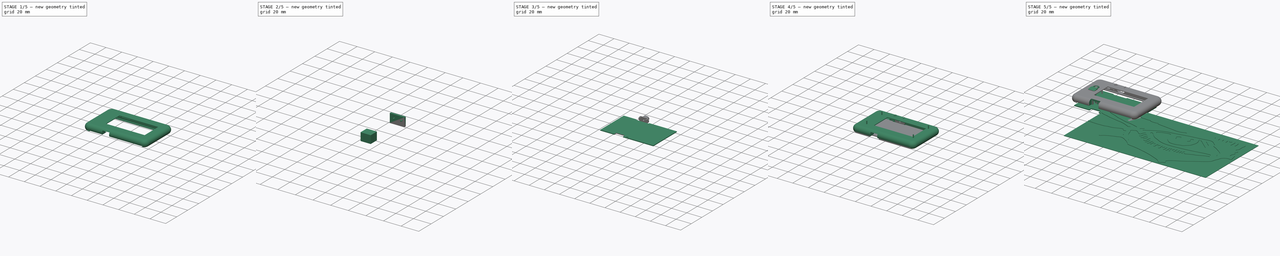
[diagram: build sequence overview — one tinted view per stage of 5, left to right]
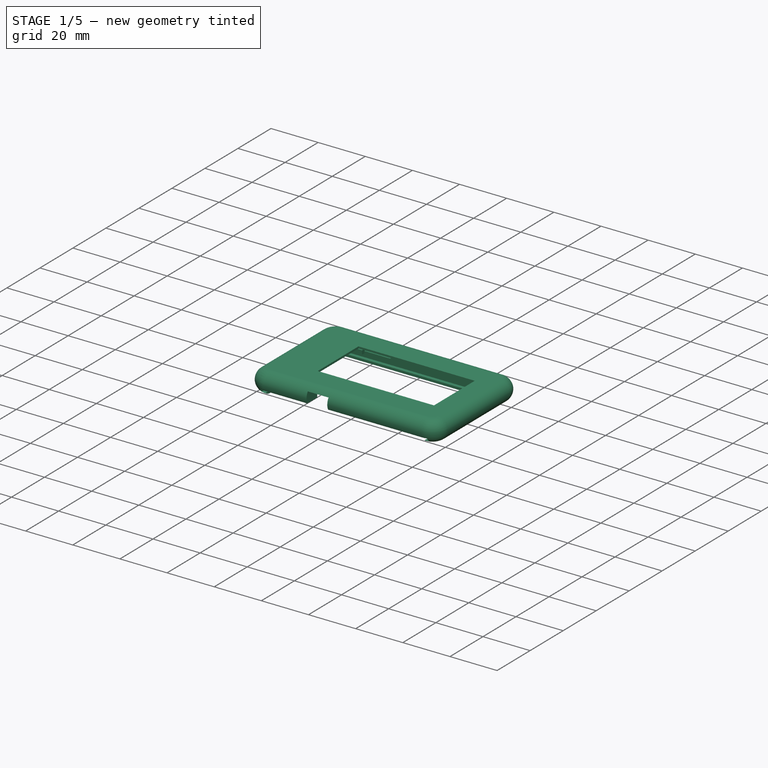
[diagram: stage 1 of 5 — iso view after this stage's code; geometry added in this stage tinted green]
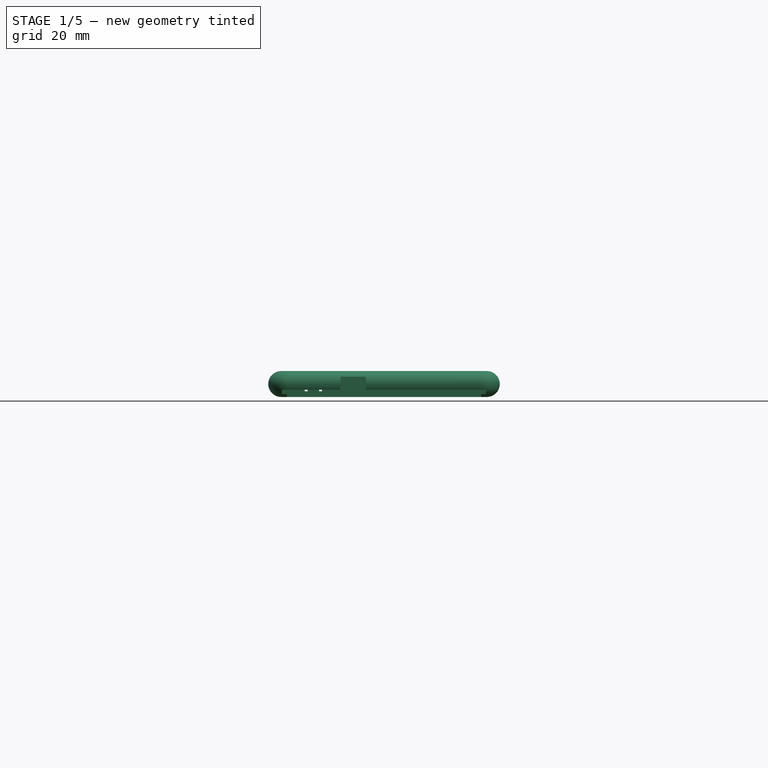
[diagram: stage 1 of 5 — front view after this stage's code; geometry added in this stage tinted green]
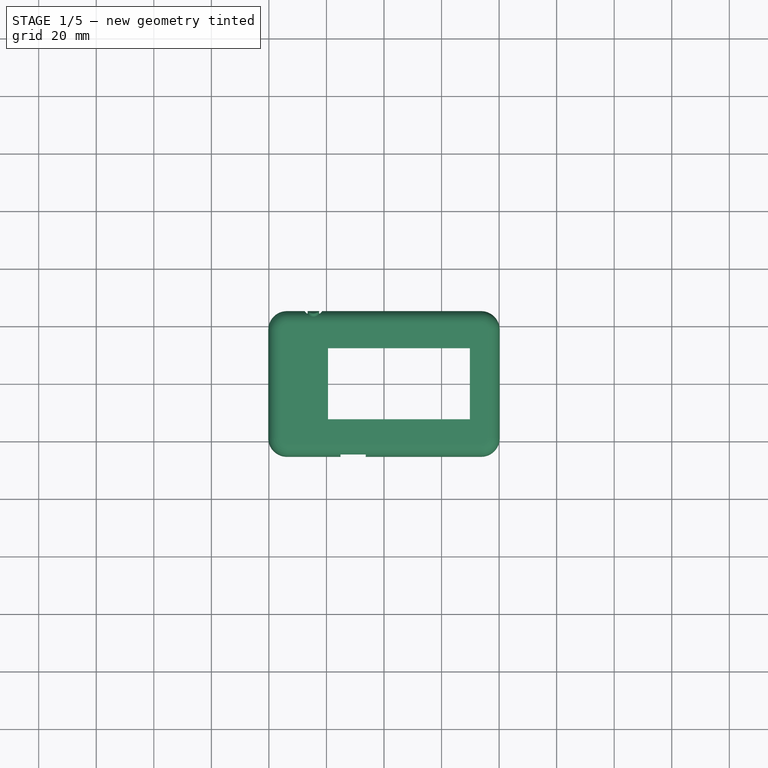
[diagram: stage 1 of 5 — top view after this stage's code; geometry added in this stage tinted green]
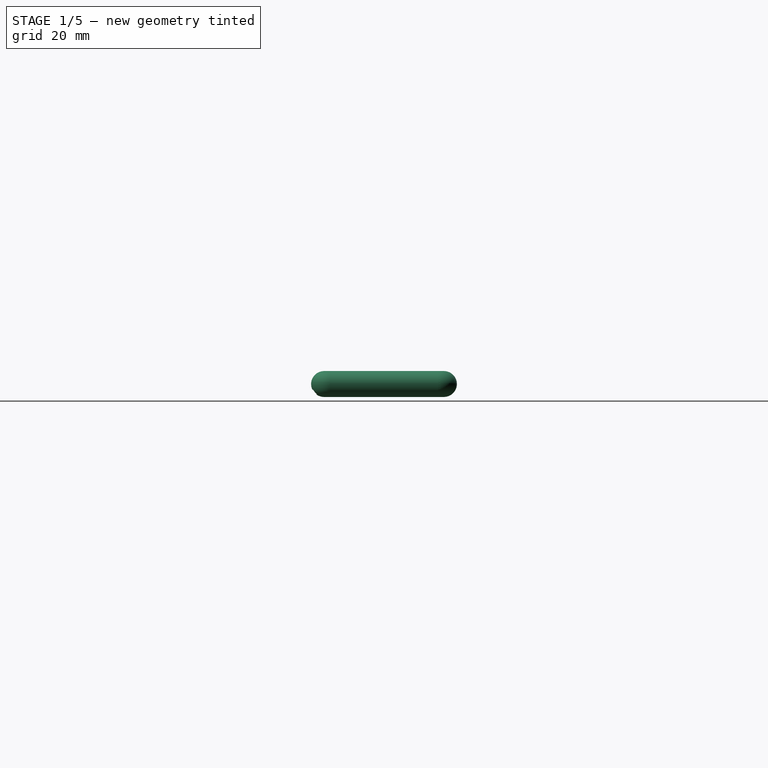
[diagram: stage 1 of 5 — right view after this stage's code; geometry added in this stage tinted green]
FCSTD DOCUMENT  (FreeCAD 0.19R22492 (Git))
Label: vpn_case
License: All rights reserved
LicenseURL: http://en.wikipedia.org/wiki/All_rights_reserved
objects: Sketcher::SketchObject×38, PartDesign::Pad×18, PartDesign::Pocket×14, PartDesign::Plane×13, PartDesign::Body×11, PartDesign::FeatureBase×4, App::DocumentObjectGroup×4, PartDesign::ShapeBinder×3, Part::Cut×3, Part::MultiFuse×3, PartDesign::Fillet×2, PartDesign::AdditivePipe×1, PartDesign::Groove×1, Part::FeaturePython×1, Part::Fillet×1
note: 149 computed .brp shape members not serialized (recipe doc carries the construction recipe); baked Part::Feature solids carry a one-line shape summary decoded from their .brp

FEATURE [Sketcher::SketchObject] Sketch
  MapMode = 5
  Support = -> [XY_Plane]
  sketch-geometry (8):
    g0: LineSegment StartX=-33.725 StartY=18.825 StartZ=0 EndX=33.725 EndY=18.825 EndZ=0
    g1: LineSegment StartX=33.725 StartY=18.825 StartZ=0 EndX=33.725 EndY=-18.825 EndZ=0
    g2: LineSegment StartX=33.725 StartY=-18.825 StartZ=0 EndX=-33.725 EndY=-18.825 EndZ=0
    g3: LineSegment StartX=-33.725 StartY=-18.825 StartZ=0 EndX=-33.725 EndY=18.825 EndZ=0
    g4: GeomPoint X=-33.725 Y=0 Z=0
    g5: LineSegment [constr] StartX=-33.725 StartY=0 StartZ=0 EndX=33.725 EndY=0 EndZ=0
    g6: GeomPoint X=0 Y=18.825 Z=0
    g7: LineSegment [constr] StartX=0 StartY=18.825 StartZ=0 EndX=0 EndY=-18.825 EndZ=0
  constraints (20):
    c: Coincident(g0,g1)
    c: Coincident(g1,g2)
    c: Coincident(g2,g3)
    c: Coincident(g3,g0)
    c: Horizontal(g0)
    c: Horizontal(g2)
    c: Vertical(g1)
    c: Vertical(g3)
    c: DistanceY(g3,g3) = 37.65
    c: DistanceX(g0,g0) = 67.45
    c: Coincident(g5,g4)
    c: PointOnObject(g5,g1)
    c: Horizontal(g5)
    c: Symmetric(g0,g2,g4)
    c: Coincident(g7,g6)
    c: PointOnObject(g7,g2)
    c: Vertical(g7)
    c: Symmetric(g0,g0,g6)
    c: PointOnObject(g-1,g7)
    c: PointOnObject(g-1,g5)
FEATURE [PartDesign::Pad] Pad
  Direction = (1,1,1)
  Length = 9
  Length2 = 100
  Profile = -> Sketch
  Type = 0
FEATURE [Sketcher::SketchObject] Sketch001
  MapMode = 5
  Placement = pos=(0,0,9) rot=(0,0,1;0rad)
  Support = -> [Pad]
  sketch-geometry (11):
    g0: LineSegment StartX=-19.45 StartY=12.35 StartZ=0 EndX=29.85 EndY=12.35 EndZ=0
    g1: LineSegment StartX=29.85 StartY=12.35 StartZ=0 EndX=29.85 EndY=-12.35 EndZ=0
    g2: LineSegment StartX=29.85 StartY=-12.35 StartZ=0 EndX=-19.45 EndY=-12.35 EndZ=0
    g3: LineSegment StartX=-19.45 StartY=-12.35 StartZ=0 EndX=-19.45 EndY=12.35 EndZ=0
    g4: LineSegment [constr] StartX=-33.25 StartY=18.33 StartZ=0 EndX=33.25 EndY=18.33 EndZ=0
    g5: LineSegment [constr] StartX=33.25 StartY=18.33 StartZ=0 EndX=33.25 EndY=-18.33 EndZ=0
    g6: LineSegment [constr] StartX=33.25 StartY=-18.33 StartZ=0 EndX=-33.25 EndY=-18.33 EndZ=0
    g7: LineSegment [constr] StartX=-33.25 StartY=-18.33 StartZ=0 EndX=-33.25 EndY=18.33 EndZ=0
    g8: LineSegment [constr] StartX=0 StartY=0 StartZ=0 EndX=-33.25 EndY=0 EndZ=0
    g9: LineSegment [constr] StartX=0 StartY=0 StartZ=0 EndX=0 EndY=-18.33 EndZ=0
    g10: GeomPoint X=-19.45 Y=0 Z=0
  constraints (29):
    c: Coincident(g0,g1)
    c: Coincident(g1,g2)
    c: Coincident(g2,g3)
    c: Coincident(g3,g0)
    c: Horizontal(g0)
    c: Horizontal(g2)
    c: Vertical(g1)
    c: Vertical(g3)
    c: DistanceX(g0,g0) = 49.3
    c: DistanceY(g3,g3) = 24.7
    c: Coincident(g4,g5)
    c: Coincident(g5,g6)
    c: Coincident(g6,g7)
    c: Coincident(g7,g4)
    c: Horizontal(g4)
    c: Horizontal(g6)
    c: Vertical(g5)
    c: Vertical(g7)
    c: DistanceX(g4,g4) = 66.5
    c: DistanceY(g7,g7) = 36.66
    c: Coincident(g8,g-1)
    c: Horizontal(g8)
    c: Symmetric(g4,g6,g8)
    c: Coincident(g9,g-1)
    c: Vertical(g9)
    c: Symmetric(g5,g6,g9)
    c: DistanceX(g0,g4) = 3.4
    c: PointOnObject(g10,g8)
    c: Symmetric(g0,g2,g10)
FEATURE [PartDesign::Pocket] Pocket
  BaseFeature = -> Pad
  Length = 2
  Length2 = 100
  Profile = -> Sketch001
  Type = 0
FEATURE [Sketcher::SketchObject] Sketch002
  ExternalGeometry = -> [Pocket]
  MapMode = 5
  Placement = pos=(-33.725,0,0) rot=(0.57735,-0.57735,-0.57735;2.0944rad)
  Support = -> [Pocket]
  sketch-geometry (5):
    g0: LineSegment StartX=18.825 StartY=9 StartZ=0 EndX=20.825 EndY=9 EndZ=0
    g1: LineSegment [constr] StartX=20.825 StartY=9 StartZ=0 EndX=20.825 EndY=0 EndZ=0
    g2: LineSegment StartX=18.825 StartY=0 StartZ=0 EndX=20.825 EndY=0 EndZ=0
    g3: ArcOfCircle CenterX=20.825 CenterY=4.5 CenterZ=0 NormalX=0 NormalY=0 NormalZ=1 AngleXU=0 Radius=4.5 StartAngle=4.71239 EndAngle=7.85398
    g4: LineSegment StartX=18.825 StartY=9 StartZ=0 EndX=18.825 EndY=0 EndZ=0
  constraints (13):
    c: Coincident(g0,g-3)
    c: Horizontal(g0)
    c: Coincident(g1,g0)
    c: PointOnObject(g1,g-1)
    c: Vertical(g1)
    c: Coincident(g2,g-3)
    c: Coincident(g2,g1)
    c: Coincident(g3,g0)
    c: Coincident(g3,g2)
    c: PointOnObject(g3,g1)
    c: DistanceX(g0,g0) = 2
    c: Coincident(g4,g0)
    c: Coincident(g4,g2)
FEATURE [PartDesign::AdditivePipe] AdditivePipe
  AuxilleryCurvelinear = true
  AuxillerySpineTangent = false
  BaseFeature = -> Pocket
  Binormal = (0,0,0)
  Mode = 0
  Profile = -> Sketch002
  Spine = -> Pocket [Edge12,Edge10,Edge4,Edge7]
  SpineTangent = false
  Transformation = 0
  Transition = 2
FEATURE [PartDesign::Plane] DatumPlane003
  AttachmentOffset = pos=(0,0,30) rot=(0,0,1;0rad)
  Length = 93.1346
  MapMode = 5
  Placement = pos=(0,-30,-6.7e-15) rot=(1,0,0;1.5708rad)
  ResizeMode = 0
  Support = -> [XZ_Plane]
  Width = 62.6846
FEATURE [Sketcher::SketchObject] Sketch007
  MapMode = 5
  Placement = pos=(0,-30,-6.7e-15) rot=(1,0,0;1.5708rad)
  Support = -> [DatumPlane003]
  sketch-geometry (13):
    g0: LineSegment [constr] StartX=0 StartY=0 StartZ=0 EndX=-42.1073 EndY=0 EndZ=0
    g1: LineSegment StartX=-35.5 StartY=2.5 StartZ=0 EndX=35.5 EndY=2.5 EndZ=0
    g2: LineSegment StartX=35.5 StartY=2.5 StartZ=0 EndX=35.5 EndY=1 EndZ=0
    g3: LineSegment [constr] StartX=35.5 StartY=1 StartZ=0 EndX=-35.5 EndY=1 EndZ=0
    g4: LineSegment StartX=-35.5 StartY=1 StartZ=0 EndX=-35.5 EndY=2.5 EndZ=0
    g5: LineSegment [constr] StartX=0 StartY=0 StartZ=0 EndX=0 EndY=2.5 EndZ=0
    g6: LineSegment [constr] StartX=-33.75 StartY=1 StartZ=0 EndX=33.75 EndY=1 EndZ=0
    g7: LineSegment StartX=33.75 StartY=1 StartZ=0 EndX=33.75 EndY=0 EndZ=0
    g8: LineSegment StartX=33.75 StartY=0 StartZ=0 EndX=-33.75 EndY=0 EndZ=0
    g9: LineSegment StartX=-33.75 StartY=0 StartZ=0 EndX=-33.75 EndY=1 EndZ=0
    g10: GeomPoint X=0 Y=1 Z=0
    g11: LineSegment StartX=-35.5 StartY=1 StartZ=0 EndX=-33.75 EndY=1 EndZ=0
    g12: LineSegment StartX=33.75 StartY=1 StartZ=0 EndX=35.5 EndY=1 EndZ=0
  constraints (33):
    c: Coincident(g0,g-1)
    c: PointOnObject(g0,g-1)
    c: Coincident(g1,g2)
    c: Coincident(g2,g3)
    c: Coincident(g3,g4)
    c: Coincident(g4,g1)
    c: Horizontal(g1)
    c: Horizontal(g3)
    c: Vertical(g2)
    c: Vertical(g4)
    c: Coincident(g5,g-1)
    c: Vertical(g5)
    c: Symmetric(g1,g1,g5)
    c: DistanceX(g1,g1) = 71
    c: Coincident(g6,g7)
    c: Coincident(g7,g8)
    c: Coincident(g8,g9)
    c: Coincident(g9,g6)
    c: Horizontal(g6)
    c: Horizontal(g8)
    c: Vertical(g7)
    c: Vertical(g9)
    c: PointOnObject(g6,g3)
    c: PointOnObject(g10,g5)
    c: Symmetric(g6,g6,g10)
    c: DistanceX(g8,g8) = 67.5
    c: Coincident(g11,g4)
    c: Coincident(g11,g9)
    c: Coincident(g12,g7)
    c: Coincident(g12,g2)
    c: PointOnObject(g8,g0)
    c: DistanceY(g9,g9) = 1
    c: DistanceY(g4,g4) = 1.5
FEATURE [PartDesign::Pocket] Pocket001
  BaseFeature = -> AdditivePipe
  Length = 50.3
  Length2 = 100
  Profile = -> Sketch007
  Type = 0
FEATURE [Sketcher::SketchObject] Sketch008
  ExternalGeometry = -> [Pocket001]
  MapMode = 5
  Placement = pos=(33.75,0,0) rot=(0.57735,-0.57735,-0.57735;2.0944rad)
  Support = -> [Pocket001]
  sketch-geometry (4):
    g0: LineSegment StartX=-20.3 StartY=1 StartZ=0 EndX=-18.8 EndY=1 EndZ=0
    g1: LineSegment StartX=-18.8 StartY=1 StartZ=0 EndX=-18.8 EndY=4.2e-15 EndZ=0
    g2: LineSegment StartX=-18.8 StartY=4.2e-15 StartZ=0 EndX=-20.3 EndY=4.2e-15 EndZ=0
    g3: LineSegment StartX=-20.3 StartY=4.2e-15 StartZ=0 EndX=-20.3 EndY=1 EndZ=0
  constraints (11):
    c: Coincident(g0,g1)
    c: Coincident(g1,g2)
    c: Coincident(g2,g3)
    c: Coincident(g3,g0)
    c: Horizontal(g0)
    c: Horizontal(g2)
    c: Vertical(g1)
    c: Vertical(g3)
    c: Coincident(g0,g-4)
    c: PointOnObject(g1,g-3)
    c: DistanceX(g0,g0) = 1.5
FEATURE [PartDesign::Pad] Pad003
  BaseFeature = -> Pocket001
  Direction = (1,1,1)
  Length = 10
  Length2 = 100
  Profile = -> Sketch008
  Type = 2
FEATURE [Sketcher::SketchObject] Sketch010
  MapMode = 5
  Support = -> [XY_Plane003]
  sketch-geometry (8):
    g0: LineSegment StartX=-33.725 StartY=18.825 StartZ=0 EndX=33.725 EndY=18.825 EndZ=0
    g1: LineSegment StartX=33.725 StartY=18.825 StartZ=0 EndX=33.725 EndY=-18.825 EndZ=0
    g2: LineSegment StartX=33.725 StartY=-18.825 StartZ=0 EndX=-33.725 EndY=-18.825 EndZ=0
    g3: LineSegment StartX=-33.725 StartY=-18.825 StartZ=0 EndX=-33.725 EndY=18.825 EndZ=0
    g4: GeomPoint X=-33.725 Y=0 Z=0
    g5: LineSegment [constr] StartX=-33.725 StartY=0 StartZ=0 EndX=33.725 EndY=0 EndZ=0
    g6: GeomPoint X=0 Y=18.825 Z=0
    g7: LineSegment [constr] StartX=0 StartY=18.825 StartZ=0 EndX=0 EndY=-18.825 EndZ=0
  constraints (20):
    c: Coincident(g0,g1)
    c: Coincident(g1,g2)
    c: Coincident(g2,g3)
    c: Coincident(g3,g0)
    c: Horizontal(g0)
    c: Horizontal(g2)
    c: Vertical(g1)
    c: Vertical(g3)
    c: DistanceY(g3,g3) = 37.65
    c: DistanceX(g0,g0) = 67.45
    c: Coincident(g5,g4)
    c: PointOnObject(g5,g1)
    c: Horizontal(g5)
    c: Symmetric(g0,g2,g4)
    c: Coincident(g7,g6)
    c: PointOnObject(g7,g2)
    c: Vertical(g7)
    c: Symmetric(g0,g0,g6)
    c: PointOnObject(g-1,g7)
    c: PointOnObject(g-1,g5)
FEATURE [PartDesign::Pocket] Pocket002
  BaseFeature = -> Pad003
  Length = 8.2
  Length2 = 100
  Profile = -> Sketch010
  Reversed = true
  Type = 0
FEATURE [PartDesign::Plane] DatumPlane004
  Length = 93.2168
  MapMode = 5
  Placement = pos=(0,0,8.2) rot=(1,0,0;3.14159rad)
  ResizeMode = 0
  Support = -> [Pocket002]
  Width = 63.4168
FEATURE [Sketcher::SketchObject] Sketch011
  ExternalGeometry = -> [Pocket002]
  MapMode = 5
  Placement = pos=(0,-5e-16,2.5) rot=(1,0,0;3.14159rad)
  Support = -> [Pocket002]
  sketch-geometry (4):
    g0: LineSegment StartX=-15.125 StartY=18.825 StartZ=0 EndX=-6.325 EndY=18.825 EndZ=0
    g1: LineSegment StartX=-6.325 StartY=18.825 StartZ=0 EndX=-6.325 EndY=28.0852 EndZ=0
    g2: LineSegment StartX=-6.325 StartY=28.0852 StartZ=0 EndX=-15.125 EndY=28.0852 EndZ=0
    g3: LineSegment StartX=-15.125 StartY=28.0852 StartZ=0 EndX=-15.125 EndY=18.825 EndZ=0
  constraints (11):
    c: Coincident(g0,g1)
    c: Coincident(g1,g2)
    c: Coincident(g2,g3)
    c: Coincident(g3,g0)
    c: Horizontal(g0)
    c: Horizontal(g2)
    c: Vertical(g1)
    c: Vertical(g3)
    c: PointOnObject(g0,g-4)
    c: DistanceX(g-4,g0) = 18.6
    c: DistanceX(g-4,g0) = 27.4
FEATURE [PartDesign::Pocket] Pocket003
  BaseFeature = -> Pocket002
  Length = 4.5
  Length2 = 100
  Profile = -> Sketch011
  Type = 0
FEATURE [PartDesign::Plane] DatumPlane005
  AttachmentOffset = pos=(0,0,-2) rot=(0,0,1;0rad)
  Length = 93.1346
  MapMode = 5
  Placement = pos=(0,-20.825,4e-16) rot=(0,0.707107,0.707107;3.14159rad)
  ResizeMode = 0
  Support = -> [Pocket003]
  Width = 62.6846
FEATURE [Sketcher::SketchObject] Sketch012
  MapMode = 5
  Placement = pos=(0,-20.825,4e-16) rot=(0,0.707107,0.707107;3.14159rad)
  Support = -> [DatumPlane005]
FEATURE [Sketcher::SketchObject] Sketch013
  ExternalGeometry = -> [Pocket003]
  MapMode = 5
  Placement = pos=(0,18.825,0) rot=(1,0,0;1.5708rad)
  Support = -> [Pocket003]
  sketch-geometry (7):
    g0: LineSegment StartX=-28.725 StartY=8.2 StartZ=0 EndX=-9.925 EndY=8.2 EndZ=0
    g1: LineSegment StartX=-9.925 StartY=8.2 StartZ=0 EndX=-9.925 EndY=5.2 EndZ=0
    g2: LineSegment StartX=-10.925 StartY=4.2 StartZ=0 EndX=-27.725 EndY=4.2 EndZ=0
    g3: LineSegment StartX=-28.725 StartY=5.2 StartZ=0 EndX=-28.725 EndY=8.2 EndZ=0
    g4: GeomPoint X=-33.725 Y=8.2 Z=0
    g5: ArcOfCircle CenterX=-27.725 CenterY=5.2 CenterZ=0 NormalX=0 NormalY=0 NormalZ=1 AngleXU=0 Radius=1 StartAngle=3.14159 EndAngle=4.71239
    g6: ArcOfCircle CenterX=-10.925 CenterY=5.2 CenterZ=0 NormalX=0 NormalY=0 NormalZ=1 AngleXU=0 Radius=1 StartAngle=4.71239 EndAngle=6.28319
  constraints (18):
    c: Coincident(g0,g1)
    c: Coincident(g3,g0)
    c: Horizontal(g0)
    c: Horizontal(g2)
    c: Vertical(g1)
    c: Vertical(g3)
    c: PointOnObject(g0,g-4)
    c: PointOnObject(g4,g-5)
    c: PointOnObject(g4,g-4)
    c: DistanceX(g4,g0) = 5
    c: Tangent(g3,g5) = 1.5708
    c: Tangent(g2,g5) = 1.5708
    c: Radius(g5) = 1
    c: Tangent(g1,g6) = 1.5708
    c: Tangent(g2,g6) = 1.5708
    c: Radius(g6) = 1
    c: DistanceX(g0,g0) = 18.8
    c: DistanceY(g2,g0) = 4
FEATURE [PartDesign::Pocket] Pocket004
  BaseFeature = -> Pocket003
  Length = 1.7
  Length2 = 100
  Profile = -> Sketch013
  Type = 0
FEATURE [Sketcher::SketchObject] Sketch014
  ExternalGeometry = -> [Pocket004]
  MapMode = 5
  Placement = pos=(0,18.825,0) rot=(1,0,0;1.5708rad)
  Support = -> [Pocket004]
  sketch-geometry (13):
    g0: LineSegment [constr] StartX=-27.5188 StartY=5.23274 StartZ=0 EndX=-26.5188 EndY=5.23274 EndZ=0
    g1: LineSegment StartX=-26.5188 StartY=5.23274 StartZ=0 EndX=-26.5188 EndY=3.5 EndZ=0
    g2: LineSegment StartX=-26.5188 StartY=3.5 StartZ=0 EndX=-27.5188 EndY=3.5 EndZ=0
    g3: LineSegment StartX=-27.5188 StartY=3.5 StartZ=0 EndX=-27.5188 EndY=5.23274 EndZ=0
    g4: LineSegment [constr] StartX=-22.5312 StartY=5.17938 StartZ=0 EndX=-21.5312 EndY=5.17938 EndZ=0
    g5: LineSegment StartX=-21.5312 StartY=5.17938 StartZ=0 EndX=-21.5312 EndY=3.5 EndZ=0
    g6: LineSegment StartX=-21.5312 StartY=3.5 StartZ=0 EndX=-22.5312 EndY=3.5 EndZ=0
    g7: LineSegment StartX=-22.5312 StartY=3.5 StartZ=0 EndX=-22.5312 EndY=5.17938 EndZ=0
    g8: LineSegment [constr] StartX=-26.5188 StartY=5.23274 StartZ=0 EndX=-22.5312 EndY=5.17938 EndZ=0
    g9: LineSegment [constr] StartX=-26.5188 StartY=3.5 StartZ=0 EndX=-22.5312 EndY=3.5 EndZ=0
    g10: ArcOfCircle CenterX=-24.525 CenterY=5.20606 CenterZ=0 NormalX=0 NormalY=0 NormalZ=1 AngleXU=0 Radius=2.99394 StartAngle=6.27427 EndAngle=9.41587
    g11: ArcOfCircle CenterX=-24.525 CenterY=5.20606 CenterZ=0 NormalX=0 NormalY=0 NormalZ=1 AngleXU=0 Radius=1.994 StartAngle=6.2698 EndAngle=9.4114
    g12: LineSegment [constr] StartX=-27.5188 StartY=3.5 StartZ=0 EndX=-27.5188 EndY=2.5 EndZ=0
  constraints (35):
    c: Coincident(g0,g1)
    c: Coincident(g1,g2)
    c: Coincident(g2,g3)
    c: Coincident(g3,g0)
    c: Horizontal(g0)
    c: Horizontal(g2)
    c: Vertical(g1)
    c: Vertical(g3)
    c: Coincident(g4,g5)
    c: Coincident(g5,g6)
    c: Coincident(g6,g7)
    c: Coincident(g7,g4)
    c: Horizontal(g4)
    c: Horizontal(g6)
    c: Vertical(g5)
    c: Vertical(g7)
    c: Coincident(g8,g0)
    c: Coincident(g8,g4)
    c: Coincident(g9,g1)
    c: Coincident(g9,g6)
    c: Horizontal(g9)
    c: Equal(g2,g6)
    c: Coincident(g10,g0)
    c: Coincident(g10,g4)
    c: Coincident(g11,g0)
    c: Coincident(g11,g4)
    c: Coincident(g11,g10)
    c: DistanceX(g2,g2) = 1
    c: Tangent(g10,g-4)
    c: Coincident(g12,g2)
    c: PointOnObject(g12,g-5)
    c: Vertical(g12)
    c: DistanceY(g12,g12) = 1
    c: DistanceX(g-3,g10) = 9.2
    c: Radius(g11) = 1.994
FEATURE [PartDesign::Pocket] Pocket005
  BaseFeature = -> Pocket004
  Length = 5
  Length2 = 100
  Profile = -> Sketch014
  Type = 1
FEATURE [PartDesign::Plane] DatumPlane006
  AttachmentOffset = pos=(0,0,-28) rot=(0,0,1;0rad)
  Length = 93.1346
  MapMode = 5
  Placement = pos=(0,28,6.2e-15) rot=(1,0,0;1.5708rad)
  ResizeMode = 0
  Support = -> [XZ_Plane]
  Width = 62.6846
FEATURE [Sketcher::SketchObject] Sketch016
  ExternalGeometry = -> [Pocket005]
  MapMode = 5
  Placement = pos=(0,28,6.2e-15) rot=(1,0,0;1.5708rad)
  Support = -> [DatumPlane006]
  sketch-geometry (8):
    g0: LineSegment StartX=-21.5312 StartY=3.5 StartZ=0 EndX=-22.5312 EndY=3.5 EndZ=0
    g1: LineSegment StartX=-22.5312 StartY=3.5 StartZ=0 EndX=-22.5312 EndY=2 EndZ=0
    g2: LineSegment StartX=-22.5312 StartY=2 StartZ=0 EndX=-21.5312 EndY=2 EndZ=0
    g3: LineSegment StartX=-21.5312 StartY=2 StartZ=0 EndX=-21.5312 EndY=3.5 EndZ=0
    g4: LineSegment StartX=-27.5188 StartY=3.5 StartZ=0 EndX=-26.5188 EndY=3.5 EndZ=0
    g5: LineSegment StartX=-26.5188 StartY=3.5 StartZ=0 EndX=-26.5188 EndY=2 EndZ=0
    g6: LineSegment StartX=-26.5188 StartY=2 StartZ=0 EndX=-27.5188 EndY=2 EndZ=0
    g7: LineSegment StartX=-27.5188 StartY=2 StartZ=0 EndX=-27.5188 EndY=3.5 EndZ=0
  constraints (20):
    c: Coincident(g0,g1)
    c: Coincident(g1,g2)
    c: Coincident(g2,g3)
    c: Coincident(g3,g0)
    c: Horizontal(g2)
    c: Vertical(g1)
    c: Vertical(g3)
    c: Coincident(g0,g-3)
    c: Coincident(g0,g-3)
    c: DistanceY(g1,g1) = 1.5
    c: Coincident(g4,g5)
    c: Coincident(g5,g6)
    c: Coincident(g6,g7)
    c: Coincident(g7,g4)
    c: Horizontal(g6)
    c: Vertical(g5)
    c: Vertical(g7)
    c: Coincident(g4,g-4)
    c: Coincident(g4,g-4)
    c: DistanceY(g7,g7) = 1.5
FEATURE [PartDesign::Pocket] Pocket006
  BaseFeature = -> Pocket005
  Length = 11
  Length2 = 100
  Profile = -> Sketch016
  Reversed = true
  Type = 0
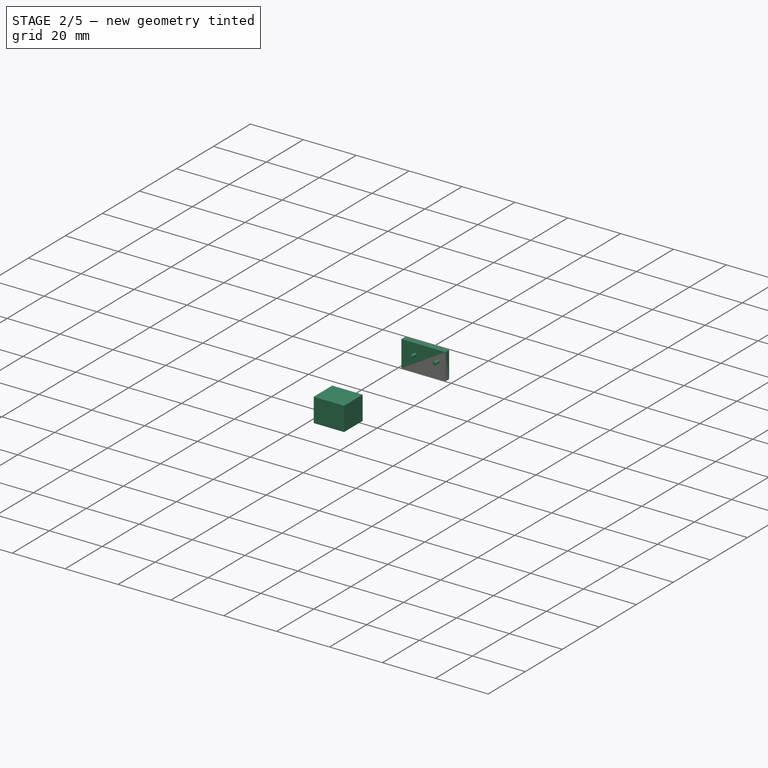
[diagram: stage 2 of 5 — iso view after this stage's code; geometry added in this stage tinted green]
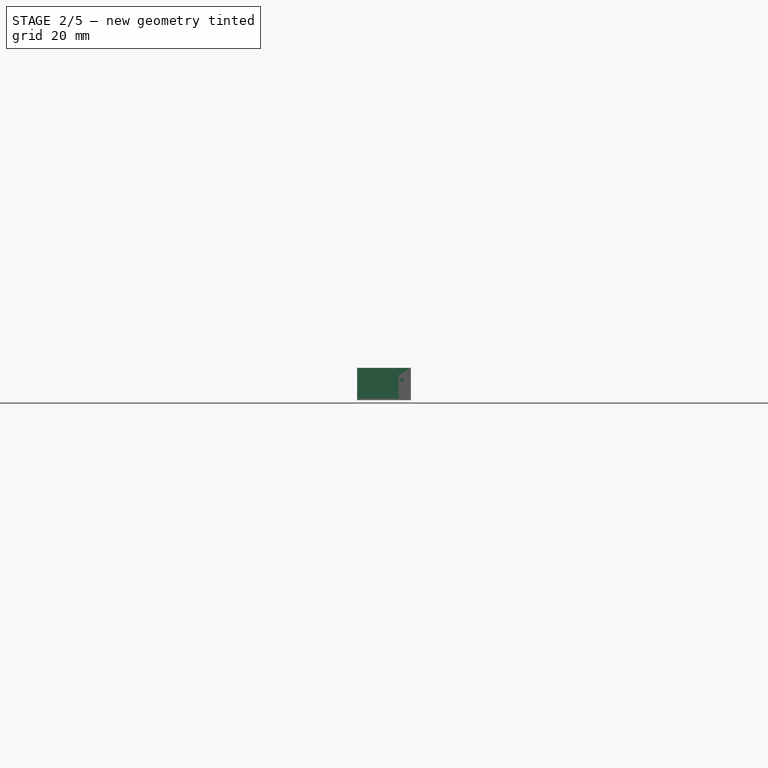
[diagram: stage 2 of 5 — front view after this stage's code; geometry added in this stage tinted green]
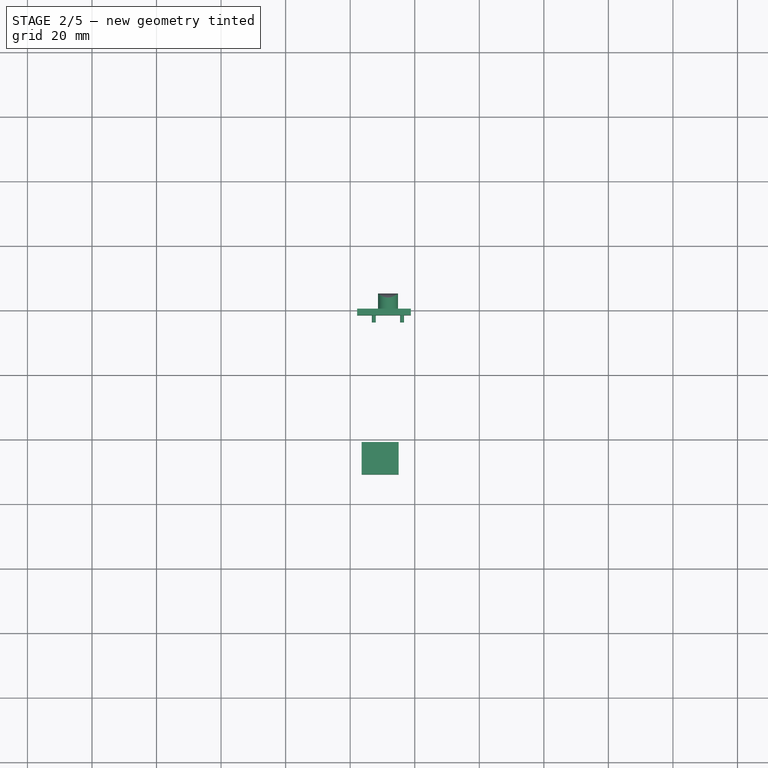
[diagram: stage 2 of 5 — top view after this stage's code; geometry added in this stage tinted green]
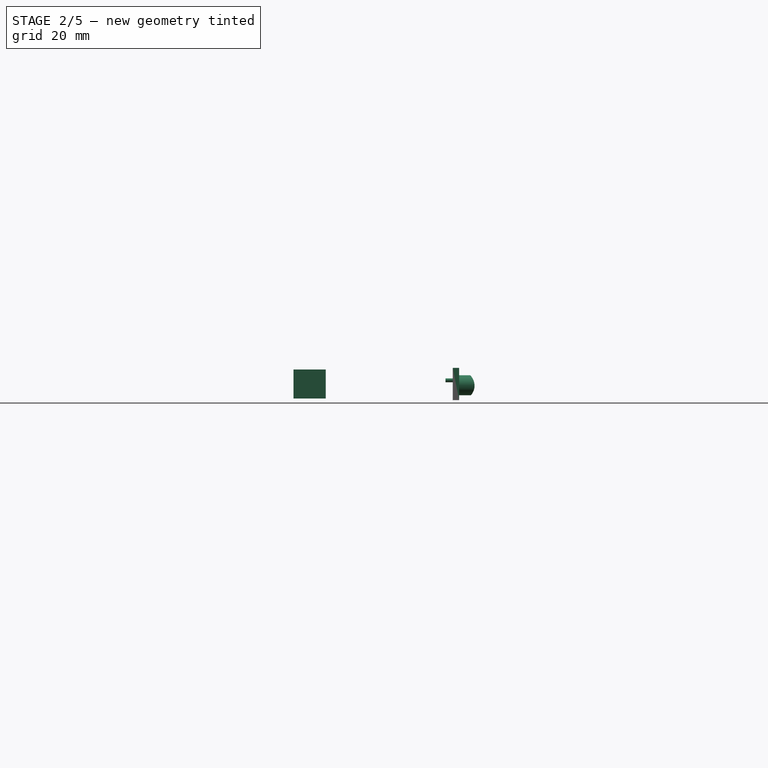
[diagram: stage 2 of 5 — right view after this stage's code; geometry added in this stage tinted green]
FEATURE [Sketcher::SketchObject] Sketch017
  ExternalGeometry = -> [Pocket006]
  MapMode = 5
  Placement = pos=(-22.5312,0,0) rot=(0.57735,0.57735,0.57735;2.0944rad)
  Support = -> [Pocket006]
  sketch-geometry (5):
    g0: LineSegment StartX=18.825 StartY=4.2 StartZ=0 EndX=22.825 EndY=4.2 EndZ=0
    g1: LineSegment [constr] StartX=22.825 StartY=4.2 StartZ=0 EndX=22.825 EndY=2 EndZ=0
    g2: LineSegment StartX=22.825 StartY=2 StartZ=0 EndX=18.825 EndY=2 EndZ=0
    g3: LineSegment StartX=18.825 StartY=2 StartZ=0 EndX=18.825 EndY=4.2 EndZ=0
    g4: ArcOfCircle CenterX=22.825 CenterY=3.1 CenterZ=0 NormalX=0 NormalY=0 NormalZ=1 AngleXU=0 Radius=1.1 StartAngle=4.71239 EndAngle=7.85398
  constraints (15):
    c: Coincident(g0,g1)
    c: Coincident(g1,g2)
    c: Coincident(g2,g3)
    c: Coincident(g3,g0)
    c: Horizontal(g0)
    c: Horizontal(g2)
    c: Vertical(g1)
    c: Vertical(g3)
    c: PointOnObject(g-4,g3)
    c: PointOnObject(g-3,g2)
    c: Coincident(g4,g0)
    c: Coincident(g4,g1)
    c: PointOnObject(g4,g1)
    c: DistanceY(g3,g3) = 2.2
    c: DistanceX(g0,g0) = 4
FEATURE [PartDesign::Pocket] Pocket007
  BaseFeature = -> Pocket006
  Length = 4
  Length2 = 100
  Profile = -> Sketch017
  Type = 2
FEATURE [PartDesign::ShapeBinder] ShapeBinder
  Support = -> [Sketch018]
  TraceSupport = false
FEATURE [PartDesign::Plane] DatumPlane007
  AttachmentOffset = pos=(0,0,-18.8) rot=(0,0,1;0rad)
  Length = 60
  MapMode = 5
  Placement = pos=(0,18.8,4.2e-15) rot=(1,0,0;1.5708rad)
  ResizeMode = 0
  Support = -> [XZ_Plane003]
  Width = 60
FEATURE [Sketcher::SketchObject] Sketch025
  ExternalGeometry = -> [ShapeBinder]
  MapMode = 5
  Placement = pos=(0,18.8,4.2e-15) rot=(1,0,0;1.5708rad)
  Support = -> [DatumPlane007]
  sketch-geometry (1):
    g0: Circle CenterX=-8.275 CenterY=4.6 CenterZ=0 NormalX=0 NormalY=0 NormalZ=1 AngleXU=0 Radius=3.1
  constraints (2):
    c: Coincident(g0,g-5)
    c: Tangent(g0,g-3)
FEATURE [PartDesign::Pad] Pad007
  Direction = (1,1,1)
  Length = 10
  Length2 = 100
  Placement = pos=(0,18.8,-4.2e-15) rot=(1,0,0;1.5708rad)
  Profile = -> Sketch025
  Reversed = true
  Type = 0
FEATURE [Sketcher::SketchObject] Sketch026
  ExternalGeometry = -> [Pad007]
  MapMode = 5
  Placement = pos=(0,18.8,-4.2e-15) rot=(1,0,0;1.5708rad)
  Support = -> [Pad007]
  sketch-geometry (7):
    g0: LineSegment [constr] StartX=-8.275 StartY=4.6 StartZ=0 EndX=-14.775 EndY=4.6 EndZ=0
    g1: ArcOfCircle CenterX=-11.675 CenterY=4.6 CenterZ=0 NormalX=0 NormalY=0 NormalZ=1 AngleXU=0 Radius=3.1 StartAngle=1.5708 EndAngle=4.71239
    g2: ArcOfCircle CenterX=-4.875 CenterY=4.6 CenterZ=0 NormalX=0 NormalY=0 NormalZ=1 AngleXU=0 Radius=3.1 StartAngle=4.71239 EndAngle=7.85398
    g3: LineSegment StartX=-11.675 StartY=1.5 StartZ=0 EndX=-4.875 EndY=1.5 EndZ=0
    g4: LineSegment StartX=-11.675 StartY=7.7 StartZ=0 EndX=-4.875 EndY=7.7 EndZ=0
    g5: GeomPoint X=-8.275 Y=7.7 Z=0
    g6: LineSegment [constr] StartX=-8.275 StartY=7.7 StartZ=0 EndX=-8.275 EndY=4.6 EndZ=0
  constraints (16):
    c: Coincident(g0,g-3)
    c: Horizontal(g0)
    c: Tangent(g1,g4)
    c: Tangent(g1,g3)
    c: Tangent(g3,g2)
    c: Tangent(g4,g2)
    c: Horizontal(g3)
    c: Equal(g1,g2)
    c: PointOnObject(g1,g0)
    c: Symmetric(g1,g2,g5)
    c: Coincident(g6,g5)
    c: Coincident(g6,g0)
    c: Vertical(g6)
    c: PointOnObject(g5,g-3)
    c: PointOnObject(g0,g1)
    c: DistanceX(g0,g0) = 6.5
FEATURE [PartDesign::Pad] Pad008
  BaseFeature = -> Pad007
  Direction = (1,1,1)
  Length = 1.2
  Length2 = 100
  Placement = pos=(0,18.8,-4.2e-15) rot=(1,0,0;1.5708rad)
  Profile = -> Sketch026
  Reversed = true
  Type = 0
FEATURE [Sketcher::SketchObject] Sketch027
  MapMode = 5
  Placement = pos=(0,0,0) rot=(0.57735,0.57735,0.57735;2.0944rad)
  Support = -> [YZ_Plane003]
  sketch-geometry (6):
    g0: ArcOfCircle CenterX=20.8 CenterY=4.5 CenterZ=0 NormalX=0 NormalY=0 NormalZ=1 AngleXU=0 Radius=4.5 StartAngle=4.71239 EndAngle=7.85398
    g1: LineSegment [constr] StartX=20.8 StartY=9 StartZ=0 EndX=20.8 EndY=4.5 EndZ=0
    g2: LineSegment [constr] StartX=20.8 StartY=0 StartZ=0 EndX=20.8 EndY=4.5 EndZ=0
    g3: LineSegment StartX=20.8 StartY=9 StartZ=0 EndX=30.3933 EndY=9 EndZ=0
    g4: LineSegment StartX=30.3933 StartY=9 StartZ=0 EndX=30.3933 EndY=0 EndZ=0
    g5: LineSegment StartX=30.3933 StartY=0 StartZ=0 EndX=20.8 EndY=0 EndZ=0
  constraints (16):
    c: Coincident(g1,g0)
    c: Coincident(g1,g0)
    c: Vertical(g1)
    c: Coincident(g2,g0)
    c: Coincident(g2,g0)
    c: Vertical(g2)
    c: DistanceX(g0) = 20.8
    c: DistanceY(g0) = 4.5
    c: DistanceY(g0,g0) = 9
    c: Coincident(g0,g3)
    c: Coincident(g3,g4)
    c: Coincident(g4,g5)
    c: Coincident(g5,g0)
    c: Horizontal(g3)
    c: Horizontal(g5)
    c: Vertical(g4)
FEATURE [PartDesign::Pocket] Pocket011
  BaseFeature = -> Pad008
  Length = 17
  Length2 = 100
  Placement = pos=(0,18.8,-4.2e-15) rot=(1,0,0;1.5708rad)
  Profile = -> Sketch027
  Type = 0
FEATURE [Sketcher::SketchObject] Sketch028
  ExternalGeometry = -> [ShapeBinder]
  MapMode = 5
  Placement = pos=(0,18.8,-4.2e-15) rot=(1,0,0;1.5708rad)
  Support = -> [Pocket011]
  sketch-geometry (1):
    g0: Circle CenterX=-8.275 CenterY=4.6 CenterZ=0 NormalX=0 NormalY=0 NormalZ=1 AngleXU=0 Radius=1.15
  constraints (2):
    c: Coincident(g0,g-3)
    c: Tangent(g0,g-3)
FEATURE [PartDesign::Pocket] Pocket012
  BaseFeature = -> Pocket011
  Length = 4
  Length2 = 100
  Placement = pos=(0,18.8,-4.2e-15) rot=(1,0,0;1.5708rad)
  Profile = -> Sketch028
  Type = 0
FEATURE [PartDesign::Plane] DatumPlane011
  AttachmentOffset = pos=(0,0,18.8) rot=(0,0,1;0rad)
  Length = 60
  MapMode = 5
  Placement = pos=(0,-18.8,4.2e-15) rot=(1,0,0;1.5708rad)
  ResizeMode = 0
  Support = -> [XZ_Plane007]
  Width = 60
FEATURE [PartDesign::Plane] DatumPlane012
  AttachmentOffset = pos=(0,0,2) rot=(0,0,1;0rad)
  Length = 60
  MapMode = 5
  Placement = pos=(0,-20.8,4.6e-15) rot=(1,0,0;1.5708rad)
  ResizeMode = 0
  Support = -> [DatumPlane011]
  Width = 60
FEATURE [Sketcher::SketchObject] Sketch035
  MapMode = 5
  Placement = pos=(0,-20.8,4.6e-15) rot=(1,0,0;1.5708rad)
  Support = -> [DatumPlane012]
  sketch-geometry (11):
    g0: LineSegment [constr] StartX=-5.60935 StartY=7 StartZ=0 EndX=1.90114 EndY=7 EndZ=0
    g1: LineSegment [constr] StartX=-5.0131 StartY=8.2 StartZ=0 EndX=-0.817735 EndY=8.2 EndZ=0
    g2: LineSegment [constr] StartX=-5.34143 StartY=6.5 StartZ=0 EndX=-2.42292 EndY=6.5 EndZ=0
    g3: LineSegment StartX=-16.475 StartY=9.5 StartZ=0 EndX=-4.975 EndY=9.5 EndZ=0
    g4: LineSegment StartX=-4.975 StartY=9.5 StartZ=0 EndX=-4.975 EndY=0.5 EndZ=0
    g5: LineSegment StartX=-4.975 StartY=0.5 StartZ=0 EndX=-16.475 EndY=0.5 EndZ=0
    g6: LineSegment StartX=-16.475 StartY=0.5 StartZ=0 EndX=-16.475 EndY=9.5 EndZ=0
    g7: LineSegment [constr] StartX=-15.125 StartY=6.80378 StartZ=0 EndX=-6.325 EndY=6.80378 EndZ=0
    g8: GeomPoint X=-10.725 Y=6.80378 Z=0
    g9: GeomPoint X=-10.725 Y=9.5 Z=0
    g10: LineSegment [constr] StartX=-10.725 StartY=9.5 StartZ=0 EndX=-10.725 EndY=6.80378 EndZ=0
  constraints (26):
    c: Horizontal(g0)
    c: DistanceY(g-1,g0) = 7
    c: Horizontal(g1)
    c: DistanceY(g0,g1) = 1.2
    c: Horizontal(g2)
    c: DistanceY(g2,g0) = 0.5
    c: Coincident(g3,g4)
    c: Coincident(g4,g5)
    c: Coincident(g5,g6)
    c: Coincident(g6,g3)
    c: Horizontal(g3)
    c: Horizontal(g5)
    c: Vertical(g4)
    c: Vertical(g6)
    c: DistanceY(g2,g3) = 3
    c: DistanceY(g4,g2) = 6
    c: Horizontal(g7)
    c: DistanceX(g7) = -15.125
    c: DistanceY(g7) = 6.80378
    c: DistanceX(g7,g7) = 8.8
    c: Symmetric(g7,g7,g8)
    c: Symmetric(g3,g3,g9)
    c: Coincident(g10,g9)
    c: Coincident(g10,g8)
    c: Vertical(g10)
    c: DistanceX(g3,g3) = 11.5
FEATURE [PartDesign::Pad] Pad013
  Direction = (1,1,1)
  Length = 10
  Length2 = 100
  Placement = pos=(0,-20.8,4.6e-15) rot=(1,0,0;1.5708rad)
  Profile = -> Sketch035
  Type = 0
FEATURE [Sketcher::SketchObject] Sketch037
  MapMode = 5
  Support = -> [XY_Plane009]
  sketch-geometry (4):
    g0: LineSegment StartX=-17.85 StartY=20.5379 StartZ=0 EndX=-1.2 EndY=20.5379 EndZ=0
    g1: LineSegment StartX=-1.2 StartY=20.5379 StartZ=0 EndX=-1.2 EndY=18.5379 EndZ=0
    g2: LineSegment StartX=-1.2 StartY=18.5379 StartZ=0 EndX=-17.85 EndY=18.5379 EndZ=0
    g3: LineSegment StartX=-17.85 StartY=18.5379 StartZ=0 EndX=-17.85 EndY=20.5379 EndZ=0
  constraints (12):
    c: Coincident(g0,g1)
    c: Coincident(g1,g2)
    c: Coincident(g2,g3)
    c: Coincident(g3,g0)
    c: Horizontal(g0)
    c: Horizontal(g2)
    c: Vertical(g1)
    c: Vertical(g3)
    c: DistanceX(g0) = -17.85
    c: DistanceY(g0) = 20.5379
    c: DistanceX(g0,g0) = 16.65
    c: DistanceY(g1,g1) = 2
FEATURE [PartDesign::Pad] Pad015
  Direction = (1,1,1)
  Length = 10
  Length2 = 100
  Profile = -> Sketch037
  Type = 0
FEATURE [PartDesign::Body] Body010  label="body_placeholder"
  Group = -> [Clone004]
  Origin = -> Origin010
  Tip = -> Clone004
FEATURE [PartDesign::FeatureBase] Clone005  label="slider_clone"
  BaseFeature = -> Body003
FEATURE [PartDesign::Body] Body009  label="lid_with_support"
  Group = -> [Clone003,Sketch038,Pad016]
  Origin = -> Origin009
  Placement = pos=(0,0,-4) rot=(0,0,1;0rad)
  Tip = -> Pad016
FEATURE [Sketcher::SketchObject] Sketch039
  MapMode = 5
  Placement = pos=(0,18.8,-4.1e-15) rot=(1,0,0;1.5708rad)
  Support = -> [Clone005]
  sketch-geometry (3):
    g0: LineSegment [constr] StartX=-12.6746 StartY=6.13614 StartZ=0 EndX=-3.94336 EndY=6.13614 EndZ=0
    g1: Circle CenterX=-12.6746 CenterY=6.13614 CenterZ=0 NormalX=0 NormalY=0 NormalZ=1 AngleXU=0 Radius=0.6
    g2: Circle CenterX=-3.94336 CenterY=6.13614 CenterZ=0 NormalX=0 NormalY=0 NormalZ=1 AngleXU=0 Radius=0.6
  constraints (5):
    c: Horizontal(g0)
    c: Coincident(g1,g0)
    c: Coincident(g2,g0)
    c: Equal(g2,g1)
    c: Radius(g1) = 0.6
FEATURE [PartDesign::Pad] Pad017
  BaseFeature = -> Clone005
  Direction = (1,1,1)
  Length = 2.5
  Length2 = 100
  Profile = -> Sketch039
  Type = 0
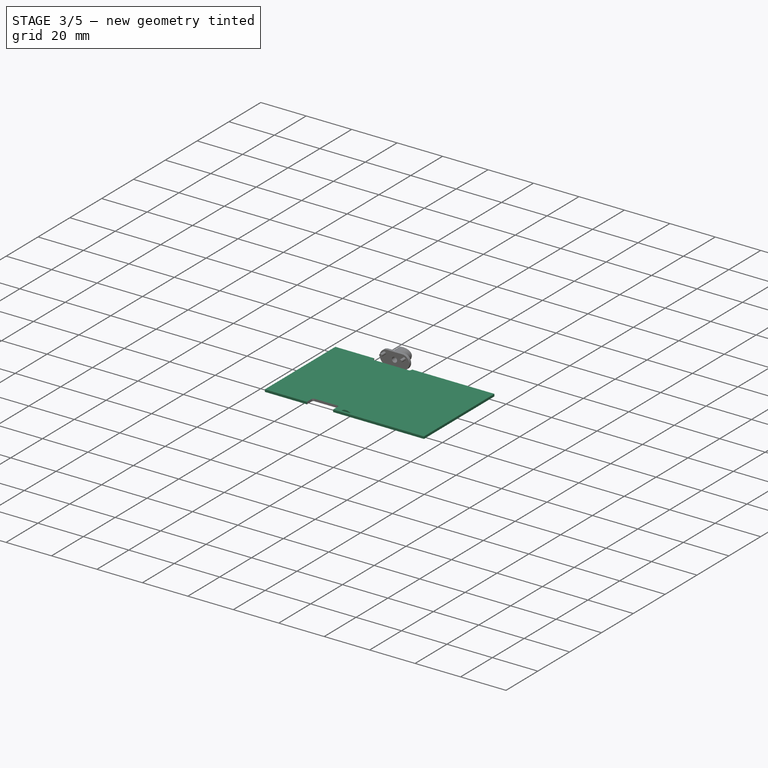
[diagram: stage 3 of 5 — iso view after this stage's code; geometry added in this stage tinted green]
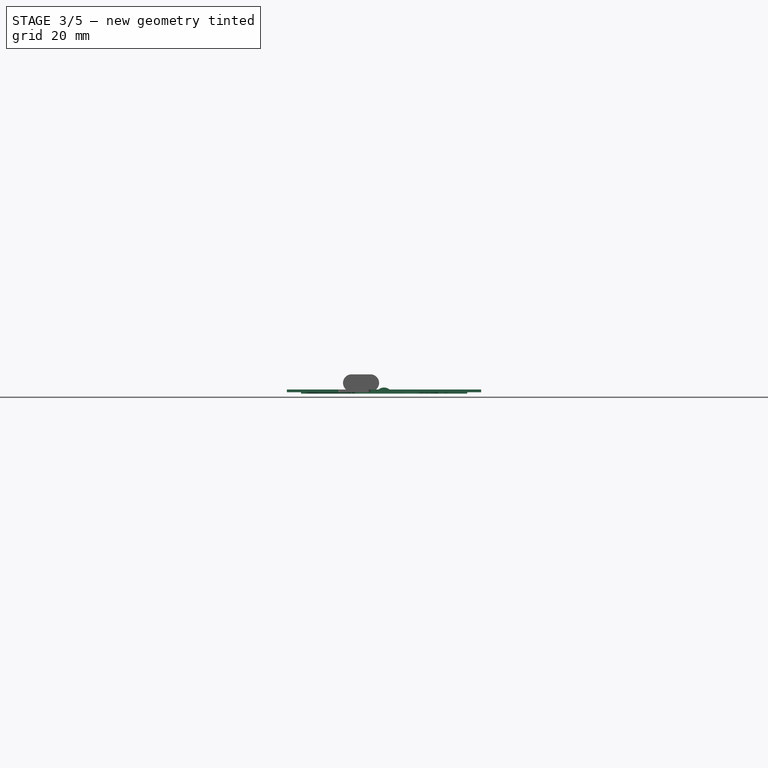
[diagram: stage 3 of 5 — front view after this stage's code; geometry added in this stage tinted green]
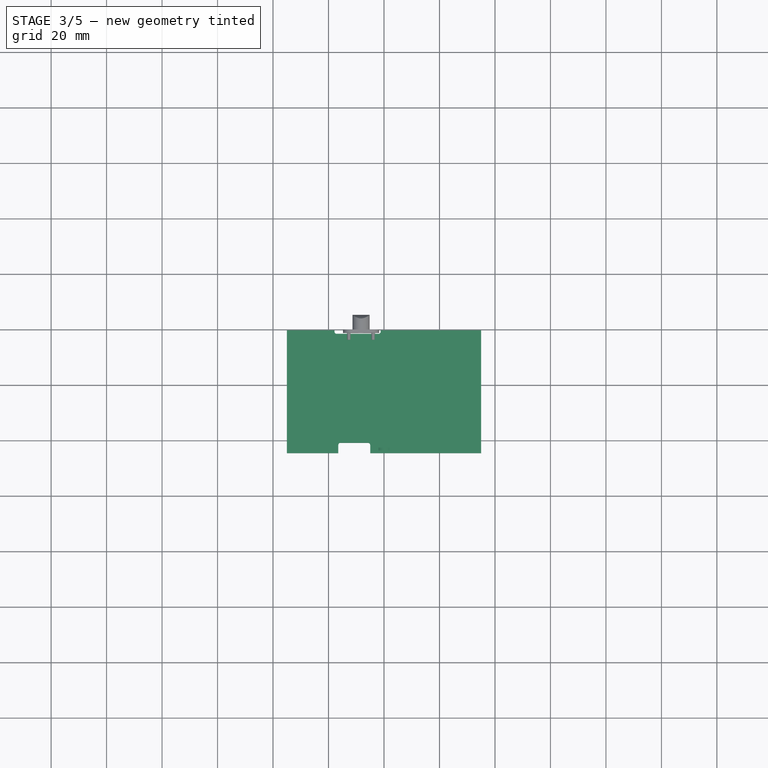
[diagram: stage 3 of 5 — top view after this stage's code; geometry added in this stage tinted green]
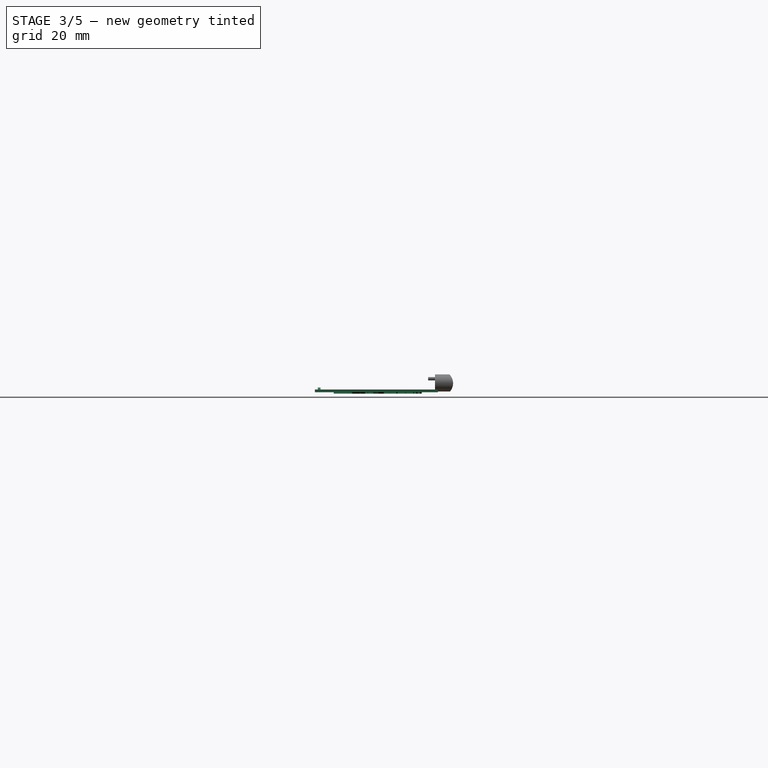
[diagram: stage 3 of 5 — right view after this stage's code; geometry added in this stage tinted green]
FEATURE [PartDesign::Body] Body003  label="slider"
  Group = -> [ShapeBinder,DatumPlane007,Sketch025,Pad007,Sketch026,Pad008,Sketch027,Pocket011,Sketch028,Pocket012]
  Origin = -> Origin003
  Tip = -> Pocket012
FEATURE [Sketcher::SketchObject] Sketch029
  MapMode = 5
  Placement = pos=(0,0,0) rot=(1,0,0;1.5708rad)
  Support = -> [XZ_Plane]
  sketch-geometry (6):
    g0: LineSegment StartX=-35 StartY=2.25 StartZ=0 EndX=35 EndY=2.25 EndZ=0
    g1: LineSegment StartX=35 StartY=2.25 StartZ=0 EndX=35 EndY=1.25 EndZ=0
    g2: LineSegment StartX=35 StartY=1.25 StartZ=0 EndX=-35 EndY=1.25 EndZ=0
    g3: LineSegment StartX=-35 StartY=1.25 StartZ=0 EndX=-35 EndY=2.25 EndZ=0
    g4: LineSegment [constr] StartX=0 StartY=0 StartZ=0 EndX=0 EndY=11.8018 EndZ=0
    g5: GeomPoint X=0 Y=1.25 Z=0
  constraints (15):
    c: Coincident(g0,g1)
    c: Coincident(g1,g2)
    c: Coincident(g2,g3)
    c: Coincident(g3,g0)
    c: Horizontal(g0)
    c: Horizontal(g2)
    c: Vertical(g1)
    c: Vertical(g3)
    c: Coincident(g4,g-1)
    c: PointOnObject(g4,g-2)
    c: PointOnObject(g5,g4)
    c: Symmetric(g2,g1,g5)
    c: DistanceX(g2,g2) = 70
    c: DistanceY(g-1,g5) = 1.25
    c: DistanceY(g1,g1) = 1
FEATURE [PartDesign::Pad] Pad009
  Direction = (1,1,1)
  Length = 24.5
  Length2 = 19.8
  Placement = pos=(0,0,0) rot=(1,0,0;1.5708rad)
  Profile = -> Sketch029
  Type = 4
FEATURE [Sketcher::SketchObject] Sketch030
  ExternalGeometry = -> [Pad009]
  MapMode = 5
  Placement = pos=(0,-24.5,1e-16) rot=(1,0,0;1.5708rad)
  Support = -> [Pad009]
  sketch-geometry (5):
    g0: ArcOfCircle CenterX=1e-16 CenterY=-0.198087 CenterZ=0 NormalX=0 NormalY=0 NormalZ=1 AngleXU=0 Radius=3.14809 StartAngle=0.890908 EndAngle=2.25068
    g1: GeomPoint X=0 Y=2.95 Z=0
    g2: LineSegment [constr] StartX=0 StartY=0 StartZ=0 EndX=0 EndY=2.95 EndZ=0
    g3: GeomPoint X=0 Y=2.25 Z=0
    g4: LineSegment StartX=-1.97922 StartY=2.25 StartZ=0 EndX=1.97922 EndY=2.25 EndZ=0
  constraints (11):
    c: PointOnObject(g0,g-3)
    c: PointOnObject(g0,g-3)
    c: PointOnObject(g1,g0)
    c: Coincident(g2,g-1)
    c: Coincident(g2,g1)
    c: Vertical(g2)
    c: PointOnObject(g3,g2)
    c: DistanceY(g3,g1) = 0.7
    c: Symmetric(g0,g0,g3)
    c: Coincident(g4,g0)
    c: Coincident(g4,g0)
FEATURE [PartDesign::ShapeBinder] CopyXZ_Plane
  Placement = pos=(0,0,0) rot=(1,0,0;1.5708rad)
  TraceSupport = false
FEATURE [PartDesign::Plane] DatumPlane008
  AttachmentOffset = pos=(0,0,23.5) rot=(0,0,1;0rad)
  Length = 81.8322
  MapMode = 5
  Placement = pos=(0,-23.5,5.2e-15) rot=(1,0,0;1.5708rad)
  ResizeMode = 0
  Support = -> [CopyXZ_Plane]
  Width = 61.8322
FEATURE [Sketcher::SketchObject] Sketch031
  ExternalGeometry = -> [Pad009]
  MapMode = 5
  Placement = pos=(0,-23.5,5.2e-15) rot=(1,0,0;1.5708rad)
  Support = -> [DatumPlane008]
  expr: Constraints[7] = Sketch030.Constraints[7]
  sketch-geometry (5):
    g0: ArcOfCircle CenterX=1e-16 CenterY=-0.198087 CenterZ=0 NormalX=0 NormalY=0 NormalZ=1 AngleXU=0 Radius=3.14809 StartAngle=0.890908 EndAngle=2.25068
    g1: GeomPoint X=0 Y=2.95 Z=0
    g2: LineSegment [constr] StartX=0 StartY=0 StartZ=0 EndX=0 EndY=2.95 EndZ=0
    g3: GeomPoint X=0 Y=2.25 Z=0
    g4: LineSegment StartX=-1.97922 StartY=2.25 StartZ=0 EndX=1.97922 EndY=2.25 EndZ=0
  constraints (11):
    c: PointOnObject(g0,g-3)
    c: PointOnObject(g0,g-3)
    c: PointOnObject(g1,g0)
    c: Coincident(g2,g-1)
    c: Coincident(g2,g1)
    c: Vertical(g2)
    c: PointOnObject(g3,g2)
    c: DistanceY(g3,g1) = 0.7
    c: Symmetric(g0,g0,g3)
    c: Coincident(g4,g0)
    c: Coincident(g4,g0)
FEATURE [PartDesign::Pad] Pad010
  BaseFeature = -> Pad009
  Direction = (1,1,1)
  Length = 1
  Length2 = 100
  Placement = pos=(0,0,0) rot=(1,0,0;1.5708rad)
  Profile = -> Sketch031
  Reversed = true
  Type = 0
FEATURE [PartDesign::Plane] DatumPlane010
  Length = 229.521
  MapMode = 2
  ResizeMode = 0
  Support = -> [Sketch033]
  Width = 148.337
FEATURE [PartDesign::Body] Body005  label="eye_origin"
  Group = -> [DatumPlane010,Sketch034,Pad011,Sketch033,Pad012]
  Origin = -> Origin005
  Tip = -> Pad012
FEATURE [Part::FeaturePython] Clone002  # WARN: FeaturePython — macro-defined, semantics opaque (R4)
  AttacherType = Attacher::AttachEngine3D
  Fuse = false
  Placement = pos=(30,14,1.25) rot=(0,1,0;3.14159rad)
  Scale = (0.35,0.35,1)
FEATURE [PartDesign::Fillet] Fillet
  Base = -> Pad013 [Edge11]
  BaseFeature = -> Pad013
  Placement = pos=(0,-20.8,4.6e-15) rot=(1,0,0;1.5708rad)
  Radius = 0.8
  SupportTransform = false
FEATURE [PartDesign::Fillet] Fillet001
  Base = -> Fillet [Edge13]
  BaseFeature = -> Fillet
  Placement = pos=(0,-20.8,4.6e-15) rot=(1,0,0;1.5708rad)
  Radius = 0.8
  SupportTransform = false
FEATURE [Sketcher::SketchObject] Sketch036
  ExternalGeometry = -> [Fillet001]
  MapMode = 5
  Placement = pos=(0,-20.8,9.5) rot=(0,0,1;3.14159rad)
  Support = -> [Fillet001]
  sketch-geometry (10):
    g0: LineSegment StartX=2.27625 StartY=10 StartZ=0 EndX=19.2036 EndY=10 EndZ=0
    g1: LineSegment StartX=19.2036 StartY=10 StartZ=0 EndX=19.2036 EndY=4.525 EndZ=0
    g2: LineSegment StartX=19.2036 StartY=4.525 StartZ=0 EndX=17.275 EndY=4.525 EndZ=0
    g3: LineSegment StartX=2.27625 StartY=4.525 StartZ=0 EndX=2.27625 EndY=10 EndZ=0
    g4: LineSegment StartX=4.975 StartY=0.8 StartZ=0 EndX=16.475 EndY=0.8 EndZ=0
    g5: LineSegment StartX=16.475 StartY=0.8 StartZ=0 EndX=16.475 EndY=3.725 EndZ=0
    g6: LineSegment StartX=4.975 StartY=3.725 StartZ=0 EndX=4.975 EndY=0.8 EndZ=0
    g7: LineSegment StartX=4.175 StartY=4.525 StartZ=0 EndX=2.27625 EndY=4.525 EndZ=0
    g8: ArcOfCircle CenterX=4.175 CenterY=3.725 CenterZ=0 NormalX=0 NormalY=0 NormalZ=1 AngleXU=0 Radius=0.8 StartAngle=1e-16 EndAngle=1.5708
    g9: ArcOfCircle CenterX=17.275 CenterY=3.725 CenterZ=0 NormalX=0 NormalY=0 NormalZ=1 AngleXU=0 Radius=0.8 StartAngle=1.5708 EndAngle=3.14159
  constraints (23):
    c: Coincident(g0,g1)
    c: Coincident(g1,g2)
    c: Coincident(g7,g3)
    c: Coincident(g3,g0)
    c: Horizontal(g0)
    c: Horizontal(g2)
    c: Vertical(g1)
    c: Vertical(g3)
    c: PointOnObject(g-3,g0)
    c: Coincident(g4,g5)
    c: Coincident(g6,g4)
    c: Vertical(g5)
    c: Vertical(g6)
    c: Coincident(g4,g-3)
    c: Coincident(g4,g-4)
    c: DistanceY(g4,g7) = 3.725
    c: Tangent(g2,g7)
    c: Tangent(g7,g8) = -1.5708
    c: Tangent(g6,g8) = 1.5708
    c: Tangent(g2,g9) = -1.5708
    c: Tangent(g5,g9) = 1.5708
    c: Radius(g8) = 0.8
    c: Radius(g9) = 0.8
FEATURE [PartDesign::Pad] Pad014
  BaseFeature = -> Fillet001
  Direction = (1,1,1)
  Length = 10
  Length2 = 100
  Placement = pos=(0,-20.8,4.6e-15) rot=(1,0,0;1.5708rad)
  Profile = -> Sketch036
  Reversed = true
  Type = 2
FEATURE [Part::Cut] Cut001
  Base = -> Body004
  Tool = -> Body007
FEATURE [Part::MultiFuse] Fusion  label="lid_with_usb_cutout"
  Shapes = -> [Cut001,Clone002]
FEATURE [PartDesign::Body] Body008  label="cutout_slider"
  Group = -> [Sketch037,Pad015]
  Origin = -> Origin008
  Tip = -> Pad015
FEATURE [Part::Cut] Cut002  label="lid_with_usb_slider_cutout"
  Base = -> Fusion
  Tool = -> Body008
FEATURE [Part::Fillet] Fillet002  label="lid"
  Base = -> Cut002
  Edges = 2 edges r=0.8: [Edge529,Edge531]
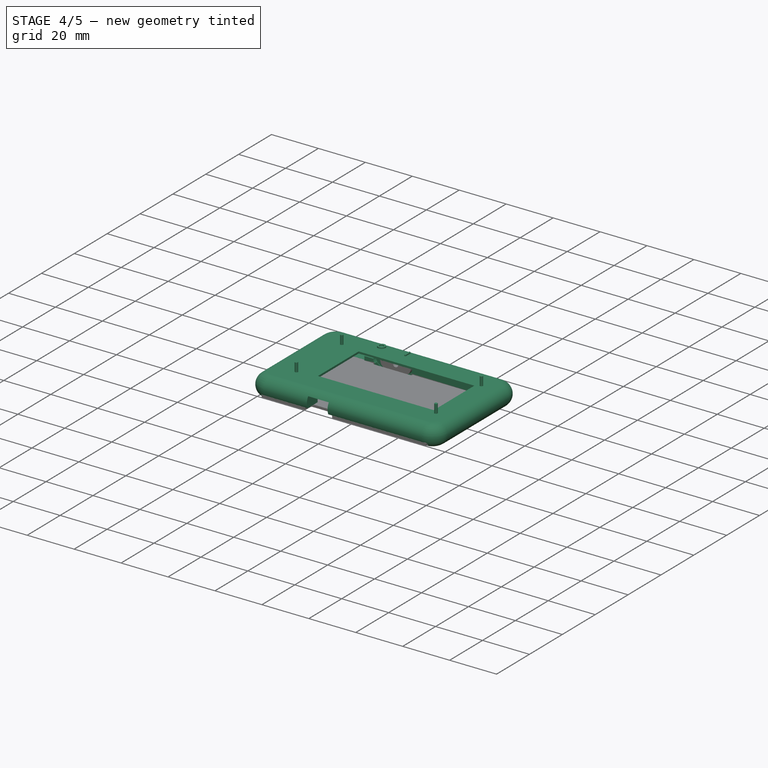
[diagram: stage 4 of 5 — iso view after this stage's code; geometry added in this stage tinted green]
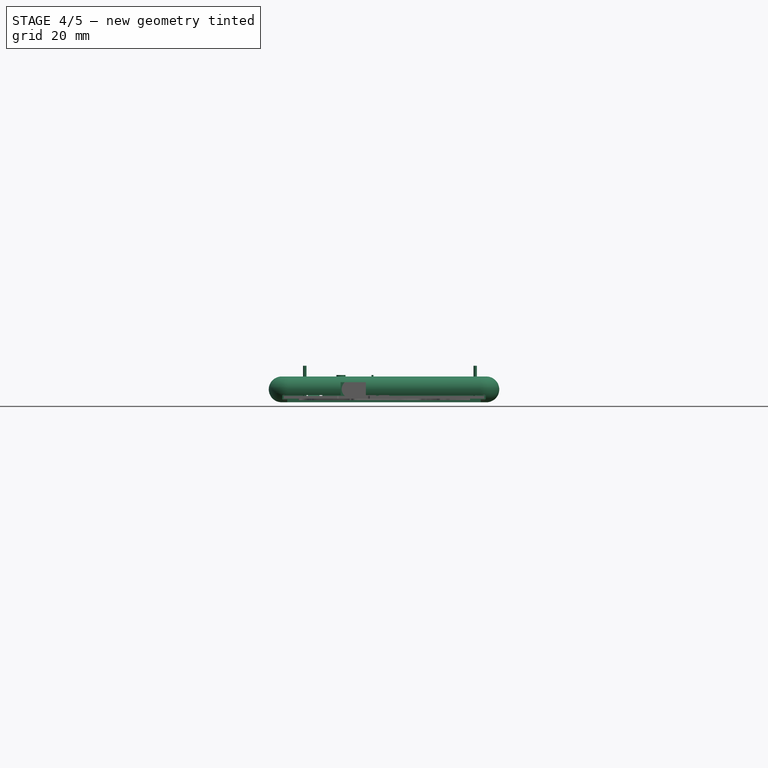
[diagram: stage 4 of 5 — front view after this stage's code; geometry added in this stage tinted green]
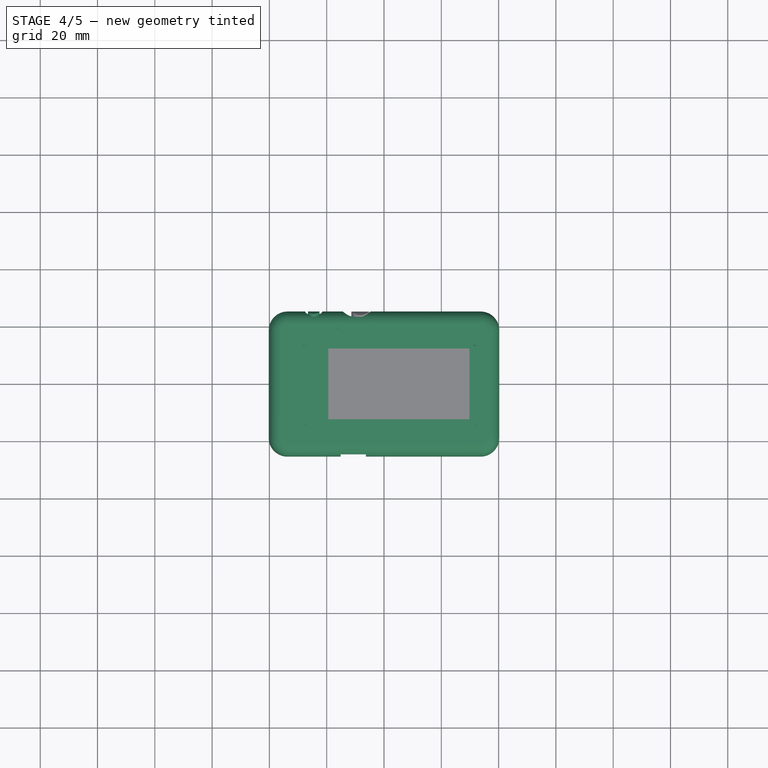
[diagram: stage 4 of 5 — top view after this stage's code; geometry added in this stage tinted green]
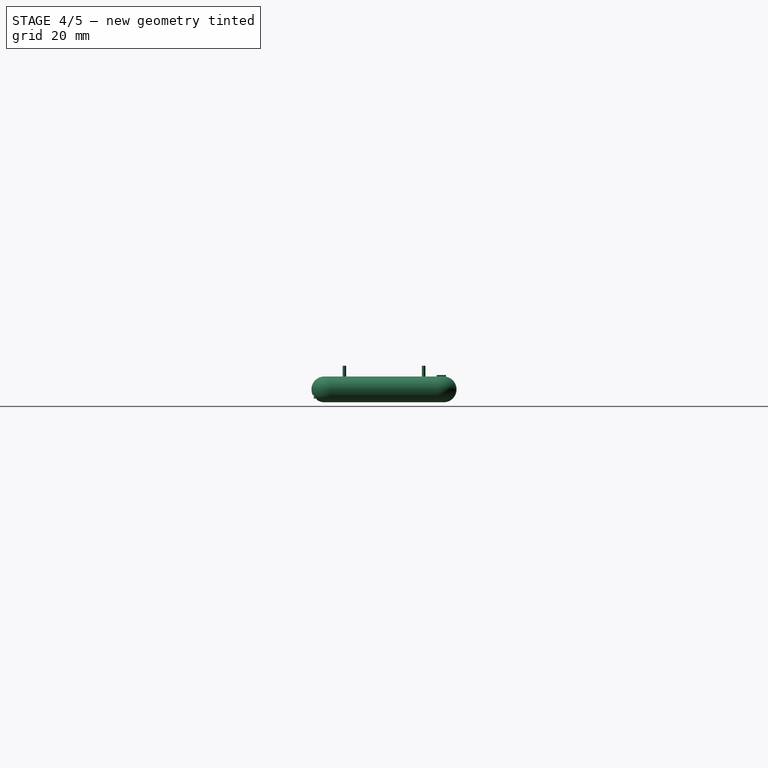
[diagram: stage 4 of 5 — right view after this stage's code; geometry added in this stage tinted green]
FEATURE [Sketcher::SketchObject] Sketch018
  ExternalGeometry = -> [Pocket007]
  MapMode = 5
  Placement = pos=(0,18.825,0) rot=(1,0,0;1.5708rad)
  Support = -> [Pocket007]
  sketch-geometry (11):
    g0: Circle CenterX=-10.775 CenterY=4.6 CenterZ=0 NormalX=0 NormalY=0 NormalZ=1 AngleXU=0 Radius=1.15
    g1: Circle [constr] CenterX=-10.775 CenterY=4.6 CenterZ=0 NormalX=0 NormalY=0 NormalZ=1 AngleXU=0 Radius=1.994
    g2: Circle [constr] CenterX=-10.775 CenterY=4.6 CenterZ=0 NormalX=0 NormalY=0 NormalZ=1 AngleXU=0 Radius=2.9939
    g3: Circle CenterX=-10.775 CenterY=4.6 CenterZ=0 NormalX=0 NormalY=0 NormalZ=1 AngleXU=0 Radius=3.6
    g4: GeomPoint X=-33.725 Y=-4.34304 Z=0
    g5: LineSegment StartX=-10.775 StartY=4.6 StartZ=0 EndX=-8.275 EndY=4.6 EndZ=0
    g6: Circle CenterX=-8.275 CenterY=4.6 CenterZ=0 NormalX=0 NormalY=0 NormalZ=1 AngleXU=0 Radius=3.6
    g7: Circle CenterX=-8.275 CenterY=4.6 CenterZ=0 NormalX=0 NormalY=0 NormalZ=1 AngleXU=0 Radius=3.1
    g8: LineSegment [constr] StartX=-8.275 StartY=4.6 StartZ=0 EndX=-8.275 EndY=8.2 EndZ=0
    g9: GeomPoint X=-8.275 Y=7.7 Z=0
    g10: Circle CenterX=-8.275 CenterY=4.6 CenterZ=0 NormalX=0 NormalY=0 NormalZ=1 AngleXU=0 Radius=1.15
  constraints (24):
    c: Coincident(g1,g0)
    c: Radius(g0) = 1.15
    c: Radius(g1) = 1.994
    c: Coincident(g2,g0)
    c: Radius(g2) = 2.9939
    c: Coincident(g3,g0)
    c: Radius(g3) = 3.6
    c: Tangent(g3,g-4)
    c: PointOnObject(g4,g-5)
    c: DistanceX(g4,g0) = 22.95
    c: Coincident(g5,g0)
    c: Horizontal(g5)
    c: DistanceX(g5,g5) = 2.5
    c: Coincident(g6,g5)
    c: Equal(g6,g3)
    c: Coincident(g7,g5)
    c: Coincident(g8,g5)
    c: PointOnObject(g8,g6)
    c: Vertical(g8)
    c: PointOnObject(g9,g8)
    c: PointOnObject(g9,g7)
    c: DistanceY(g9,g8) = 0.5
    c: Coincident(g10,g5)
    c: Equal(g10,g0)
FEATURE [Sketcher::SketchObject] Sketch019
  MapMode = 5
  Placement = pos=(0,18.825,0) rot=(1,0,0;1.5708rad)
  Support = -> [Pocket007]
  sketch-geometry (6):
    g0: LineSegment [constr] StartX=-10.7749 StartY=4.60381 StartZ=0 EndX=-10.7749 EndY=8.2 EndZ=0
    g1: LineSegment [constr] StartX=-8.275 StartY=4.6 StartZ=0 EndX=-8.275 EndY=8.2 EndZ=0
    g2: ArcOfCircle CenterX=-10.7749 CenterY=4.60381 CenterZ=0 NormalX=0 NormalY=0 NormalZ=1 AngleXU=0 Radius=3.59619 StartAngle=1.5708 EndAngle=4.71239
    g3: ArcOfCircle CenterX=-8.275 CenterY=4.60381 CenterZ=0 NormalX=0 NormalY=0 NormalZ=1 AngleXU=0 Radius=3.59619 StartAngle=4.71239 EndAngle=7.85398
    g4: LineSegment StartX=-10.7749 StartY=1.00762 StartZ=0 EndX=-8.275 EndY=1.00762 EndZ=0
    g5: LineSegment StartX=-10.7749 StartY=8.2 StartZ=0 EndX=-8.275 EndY=8.2 EndZ=0
  constraints (15):
    c: Vertical(g0)
    c: Vertical(g1)
    c: Tangent(g2,g5)
    c: Tangent(g2,g4)
    c: Tangent(g4,g3)
    c: Tangent(g5,g3)
    c: Horizontal(g4)
    c: Equal(g2,g3)
    c: Coincident(g2,g0)
    c: DistanceX(g1) = -8.275
    c: DistanceY(g1) = 4.6
    c: DistanceX(g2) = -10.7749
    c: DistanceY(g2) = 4.60381
    c: DistanceY(g1,g1) = 3.6
    c: Coincident(g3,g1)
FEATURE [PartDesign::Pocket] Pocket008
  BaseFeature = -> Pocket007
  Length = 5
  Length2 = 100
  Profile = -> Sketch019
  Type = 1
FEATURE [Sketcher::SketchObject] Sketch020
  ExternalGeometry = -> [Pocket008]
  MapMode = 5
  Placement = pos=(0,18.825,0) rot=(1,0,0;1.5708rad)
  Support = -> [Pocket008]
  sketch-geometry (6):
    g0: LineSegment [constr] StartX=-10.7749 StartY=4.60381 StartZ=0 EndX=-14.2749 EndY=4.60381 EndZ=0
    g1: ArcOfCircle CenterX=-14.2749 CenterY=4.60381 CenterZ=0 NormalX=0 NormalY=0 NormalZ=1 AngleXU=0 Radius=3.59619 StartAngle=1.5708 EndAngle=4.71239
    g2: ArcOfCircle CenterX=-4.775 CenterY=4.60381 CenterZ=0 NormalX=0 NormalY=0 NormalZ=1 AngleXU=0 Radius=3.59619 StartAngle=4.71239 EndAngle=7.85398
    g3: LineSegment StartX=-14.2749 StartY=1.00762 StartZ=0 EndX=-4.775 EndY=1.00762 EndZ=0
    g4: LineSegment StartX=-14.2749 StartY=8.2 StartZ=0 EndX=-4.775 EndY=8.2 EndZ=0
    g5: LineSegment [constr] StartX=-10.7749 StartY=8.2 StartZ=0 EndX=-10.7749 EndY=4.60381 EndZ=0
  constraints (14):
    c: Coincident(g0,g-3)
    c: Horizontal(g0)
    c: Tangent(g1,g4)
    c: Tangent(g1,g3)
    c: Tangent(g3,g2)
    c: Tangent(g4,g2)
    c: Horizontal(g3)
    c: Equal(g1,g2)
    c: Coincident(g1,g0)
    c: DistanceX(g0,g0) = 3.5
    c: Coincident(g5,g-3)
    c: Coincident(g5,g0)
    c: PointOnObject(g5,g4)
    c: DistanceX(g-4,g2) = 3.5
FEATURE [PartDesign::Pocket] Pocket009
  BaseFeature = -> Pocket008
  Length = 0
  Length2 = 100
  Profile = -> Sketch020
  Type = 3
  UpToFace = -> Pocket008 [Face42]
FEATURE [Sketcher::SketchObject] Sketch021
  ExternalGeometry = -> [Pocket009]
  MapMode = 5
  Placement = pos=(0,0,9) rot=(0,0,1;0rad)
  Support = -> [Pocket009]
  sketch-geometry (16):
    g0: ArcOfCircle CenterX=-4.02496 CenterY=21.2362 CenterZ=0 NormalX=0 NormalY=0 NormalZ=1 AngleXU=0 Radius=0.35 StartAngle=4e-15 EndAngle=3.14159
    g1: ArcOfCircle CenterX=-4.02496 CenterY=18.7362 CenterZ=0 NormalX=0 NormalY=0 NormalZ=1 AngleXU=0 Radius=0.35 StartAngle=3.14159 EndAngle=6.28319
    g2: LineSegment StartX=-4.37496 StartY=21.2362 StartZ=0 EndX=-4.37496 EndY=18.7362 EndZ=0
    g3: LineSegment StartX=-3.67496 StartY=21.2362 StartZ=0 EndX=-3.67496 EndY=18.7362 EndZ=0
    g4: GeomPoint X=-4.37496 Y=19.9862 Z=0
    g5: LineSegment [constr] StartX=-9.52496 StartY=23.3862 StartZ=0 EndX=-9.52496 EndY=19.9862 EndZ=0
    g6: LineSegment [constr] StartX=-9.52496 StartY=19.9862 StartZ=0 EndX=-4.37496 EndY=19.9862 EndZ=0
    g7: Circle CenterX=-15.025 CenterY=19.9862 CenterZ=0 NormalX=0 NormalY=0 NormalZ=1 AngleXU=0 Radius=1.6
    g8: Circle CenterX=-15.025 CenterY=19.9862 CenterZ=0 NormalX=0 NormalY=0 NormalZ=1 AngleXU=0 Radius=0.9
    g9: LineSegment [constr] StartX=-15.025 StartY=19.9862 StartZ=0 EndX=-15.025 EndY=21.5862 EndZ=0
    g10: GeomPoint X=-15.025 Y=20.8862 Z=0
    g11: GeomPoint X=-15.025 Y=21.2362 Z=0
    g12: LineSegment [constr] StartX=-15.025 StartY=19.9862 StartZ=0 EndX=-9.52496 EndY=19.9862 EndZ=0
    g13: LineSegment [constr] StartX=-4.37496 StartY=19.9862 StartZ=0 EndX=-3.67496 EndY=19.9862 EndZ=0
    g14: GeomPoint X=-4.02496 Y=19.9862 Z=0
    g15: LineSegment [constr] StartX=-15.025 StartY=21.2362 StartZ=0 EndX=-4.02496 EndY=21.2362 EndZ=0
  constraints (34):
    c: Tangent(g0,g3)
    c: Tangent(g0,g2)
    c: Tangent(g2,g1)
    c: Tangent(g3,g1)
    c: Vertical(g2)
    c: Equal(g0,g1)
    c: DistanceX(g0,g0) = 0.7
    c: DistanceY(g1,g0) = 2.5
    c: Symmetric(g0,g1,g4)
    c: Vertical(g5)
    c: Symmetric(g-3,g-3,g5)
    c: Coincident(g6,g5)
    c: Coincident(g6,g4)
    c: Horizontal(g6)
    c: Coincident(g8,g7)
    c: Coincident(g9,g7)
    c: PointOnObject(g9,g7)
    c: Vertical(g9)
    c: PointOnObject(g10,g8)
    c: PointOnObject(g10,g9)
    c: DistanceY(g10,g9) = 0.7
    c: Symmetric(g9,g10,g11)
    c: Coincident(g12,g7)
    c: Coincident(g12,g5)
    c: Horizontal(g12)
    c: Coincident(g13,g4)
    c: PointOnObject(g13,g3)
    c: Symmetric(g13,g4,g14)
    c: Symmetric(g14,g7,g5)
    c: Coincident(g15,g11)
    c: Coincident(g15,g0)
    c: Horizontal(g15)
    c: DistanceX(g15,g15) = 11
    c: DistanceY(g5,g5) = 3.4
FEATURE [PartDesign::Pad] Pad004
  BaseFeature = -> Pocket009
  Direction = (1,1,1)
  Length = 0.5
  Length2 = 0.75
  Profile = -> Sketch021
  Type = 4
FEATURE [Sketcher::SketchObject] Sketch022
  ExternalGeometry = -> [Pad004]
  MapMode = 5
  Placement = pos=(33.725,0,0) rot=(0.57735,-0.57735,-0.57735;2.0944rad)
  Support = -> [Pad004]
  sketch-geometry (4):
    g0: LineSegment StartX=18.825 StartY=8.2 StartZ=0 EndX=15.725 EndY=8.2 EndZ=0
    g1: LineSegment StartX=15.725 StartY=8.2 StartZ=0 EndX=15.725 EndY=7 EndZ=0
    g2: LineSegment StartX=15.725 StartY=7 StartZ=0 EndX=18.825 EndY=7 EndZ=0
    g3: LineSegment StartX=18.825 StartY=7 StartZ=0 EndX=18.825 EndY=8.2 EndZ=0
  constraints (12):
    c: Coincident(g0,g1)
    c: Coincident(g1,g2)
    c: Coincident(g2,g3)
    c: Coincident(g3,g0)
    c: Horizontal(g0)
    c: Horizontal(g2)
    c: Vertical(g1)
    c: Vertical(g3)
    c: PointOnObject(g0,g-4)
    c: PointOnObject(g0,g-3)
    c: DistanceY(g1,g1) = 1.2
    c: DistanceX(g2,g2) = 3.1
FEATURE [PartDesign::Pad] Pad005
  BaseFeature = -> Pad004
  Direction = (1,1,1)
  Length = 10
  Length2 = 100
  Profile = -> Sketch022
  Type = 2
FEATURE [Sketcher::SketchObject] Sketch023
  ExternalGeometry = -> [Pad005]
  MapMode = 5
  Placement = pos=(33.725,0,0) rot=(0.57735,-0.57735,-0.57735;2.0944rad)
  Support = -> [Pad005]
  sketch-geometry (5):
    g0: LineSegment [constr] StartX=15.725 StartY=7 StartZ=0 EndX=-18.825 EndY=7 EndZ=0
    g1: LineSegment StartX=-18.825 StartY=7 StartZ=0 EndX=-15.725 EndY=7 EndZ=0
    g2: LineSegment StartX=-15.725 StartY=7 StartZ=0 EndX=-15.725 EndY=8.2 EndZ=0
    g3: LineSegment StartX=-15.725 StartY=8.2 StartZ=0 EndX=-18.825 EndY=8.2 EndZ=0
    g4: LineSegment StartX=-18.825 StartY=8.2 StartZ=0 EndX=-18.825 EndY=7 EndZ=0
  constraints (14):
    c: Coincident(g0,g-5)
    c: PointOnObject(g0,g-4)
    c: Horizontal(g0)
    c: Coincident(g1,g2)
    c: Coincident(g2,g3)
    c: Coincident(g3,g4)
    c: Coincident(g4,g1)
    c: Horizontal(g1)
    c: Horizontal(g3)
    c: Vertical(g2)
    c: Vertical(g4)
    c: Coincident(g1,g0)
    c: PointOnObject(g2,g-3)
    c: DistanceX(g1,g1) = 3.1
FEATURE [PartDesign::Pad] Pad006
  BaseFeature = -> Pad005
  Direction = (1,1,1)
  Length = 40
  Length2 = 100
  Profile = -> Sketch023
  Type = 2
FEATURE [Sketcher::SketchObject] Sketch024
  ExternalGeometry = -> [Pad006]
  MapMode = 5
  Placement = pos=(0,0,7) rot=(1,0,0;3.14159rad)
  Support = -> [Pad006]
  sketch-geometry (4):
    g0: LineSegment StartX=-30.225 StartY=-15.725 StartZ=0 EndX=-0.225 EndY=-15.725 EndZ=0
    g1: LineSegment StartX=-0.225 StartY=-15.725 StartZ=0 EndX=-0.225 EndY=-18.825 EndZ=0
    g2: LineSegment StartX=-0.225 StartY=-18.825 StartZ=0 EndX=-30.225 EndY=-18.825 EndZ=0
    g3: LineSegment StartX=-30.225 StartY=-18.825 StartZ=0 EndX=-30.225 EndY=-15.725 EndZ=0
  constraints (12):
    c: Coincident(g0,g1)
    c: Coincident(g1,g2)
    c: Coincident(g2,g3)
    c: Coincident(g3,g0)
    c: Horizontal(g0)
    c: Horizontal(g2)
    c: Vertical(g1)
    c: Vertical(g3)
    c: PointOnObject(g0,g-4)
    c: PointOnObject(g-3,g2)
    c: DistanceX(g2,g-3) = 1.5
    c: DistanceX(g0,g0) = 30
FEATURE [PartDesign::Pocket] Pocket010
  BaseFeature = -> Pad006
  Length = 0
  Length2 = 100
  Profile = -> Sketch024
  Type = 3
  UpToFace = -> Pad006 [Face103]
FEATURE [PartDesign::Body] Body004
  Group = -> [Sketch029,Pad009,Sketch030,DatumPlane008,CopyXZ_Plane,Sketch031,Pad010]
  Origin = -> Origin004
  Tip = -> Pad010
FEATURE [PartDesign::ShapeBinder] CopyPad010
  Placement = pos=(0,0,0) rot=(1,0,0;1.5708rad)
  TraceSupport = false
FEATURE [PartDesign::Plane] DatumPlane009
  AttachmentOffset = pos=(0,0,23.5) rot=(0,0,1;0rad)
  Length = 93.1346
  MapMode = 2
  Placement = pos=(0,-23.5,5.2e-15) rot=(1,0,0;1.5708rad)
  ResizeMode = 0
  Support = -> [CopyPad010]
  Width = 62.6846
FEATURE [Sketcher::SketchObject] Sketch032
  MapMode = 5
  Placement = pos=(0,-23.5,5.2e-15) rot=(1,0,0;1.5708rad)
  Support = -> [DatumPlane009]
  sketch-geometry (1):
    g0: Circle CenterX=0 CenterY=0 CenterZ=0 NormalX=0 NormalY=0 NormalZ=1 AngleXU=0 Radius=3.5
  constraints (2):
    c: Radius(g0) = 3.5
    c: Coincident(g0,g-1)
FEATURE [PartDesign::Pocket] Pocket013
  BaseFeature = -> Pocket010
  Length = 1.25
  Length2 = 0.25
  Profile = -> Sketch032
  Type = 4
FEATURE [App::DocumentObjectGroup] Group001  label="assembly"
  Group = -> [Fillet002,Fusion001,Body003]
FEATURE [App::DocumentObjectGroup] Group002  label="temporary"
  Group = -> [Body001,XY_Plane003,Body005]
FEATURE [App::DocumentObjectGroup] Group  label="design"
  Group = -> [Group001,Group002]
FEATURE [PartDesign::FeatureBase] Clone003  label="lid_clone"
  BaseFeature = -> Fillet002
FEATURE [Sketcher::SketchObject] Sketch038
  MapMode = 5
  Placement = pos=(0,5e-16,2.25) rot=(0,0,1;0rad)
  Support = -> [Clone003]
  sketch-geometry (9):
    g0: LineSegment [constr] StartX=-27.6582 StartY=13.8381 StartZ=0 EndX=31.8392 EndY=13.8381 EndZ=0
    g1: LineSegment [constr] StartX=31.8392 StartY=13.8381 StartZ=0 EndX=31.8392 EndY=-13.8381 EndZ=0
    g2: LineSegment [constr] StartX=31.8392 StartY=-13.8381 StartZ=0 EndX=-27.6582 EndY=-13.8381 EndZ=0
    g3: LineSegment [constr] StartX=-27.6582 StartY=-13.8381 StartZ=0 EndX=-27.6582 EndY=13.8381 EndZ=0
    g4: LineSegment [constr] StartX=0 StartY=0 StartZ=0 EndX=-27.6582 EndY=0 EndZ=0
    g5: Circle CenterX=-27.6582 CenterY=13.8381 CenterZ=0 NormalX=0 NormalY=0 NormalZ=1 AngleXU=0 Radius=0.6
    g6: Circle CenterX=31.8392 CenterY=13.8381 CenterZ=0 NormalX=0 NormalY=0 NormalZ=1 AngleXU=0 Radius=0.6
    g7: Circle CenterX=31.8392 CenterY=-13.8381 CenterZ=0 NormalX=0 NormalY=0 NormalZ=1 AngleXU=0 Radius=0.6
    g8: Circle CenterX=-27.6582 CenterY=-13.8381 CenterZ=0 NormalX=0 NormalY=0 NormalZ=1 AngleXU=0 Radius=0.6
  constraints (19):
    c: Coincident(g0,g1)
    c: Coincident(g1,g2)
    c: Coincident(g2,g3)
    c: Coincident(g3,g0)
    c: Horizontal(g0)
    c: Horizontal(g2)
    c: Vertical(g1)
    c: Vertical(g3)
    c: Coincident(g4,g-1)
    c: Horizontal(g4)
    c: Symmetric(g0,g2,g4)
    c: Coincident(g5,g0)
    c: Coincident(g6,g0)
    c: Coincident(g7,g1)
    c: Coincident(g8,g2)
    c: Equal(g8,g5)
    c: Equal(g7,g5)
    c: Equal(g6,g5)
    c: Radius(g5) = 0.6
FEATURE [PartDesign::Pad] Pad016
  BaseFeature = -> Clone003
  Direction = (1,1,1)
  Length = 10.5
  Length2 = 100
  Profile = -> Sketch038
  Type = 0
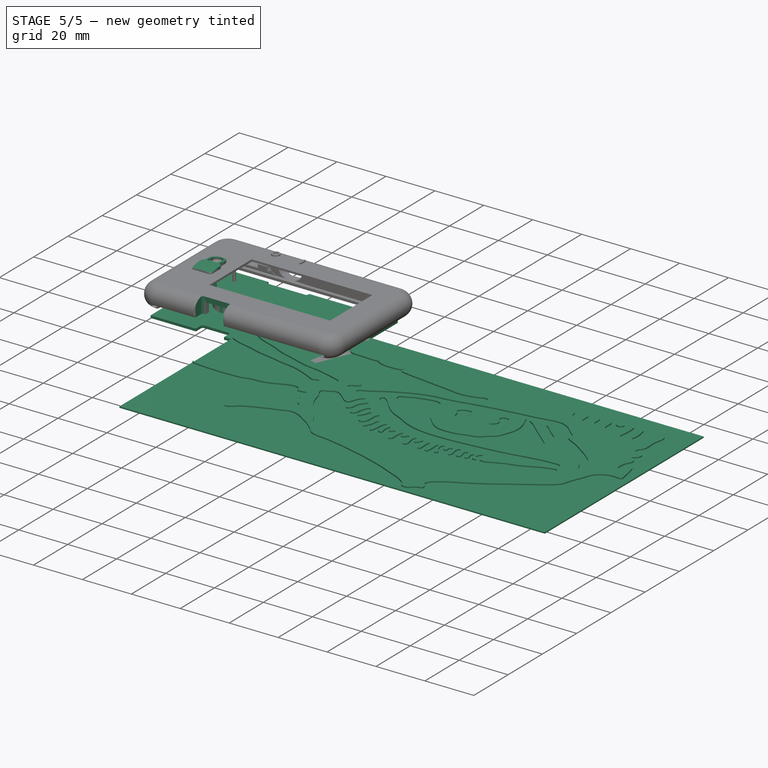
[diagram: stage 5 of 5 — iso view after this stage's code; geometry added in this stage tinted green]
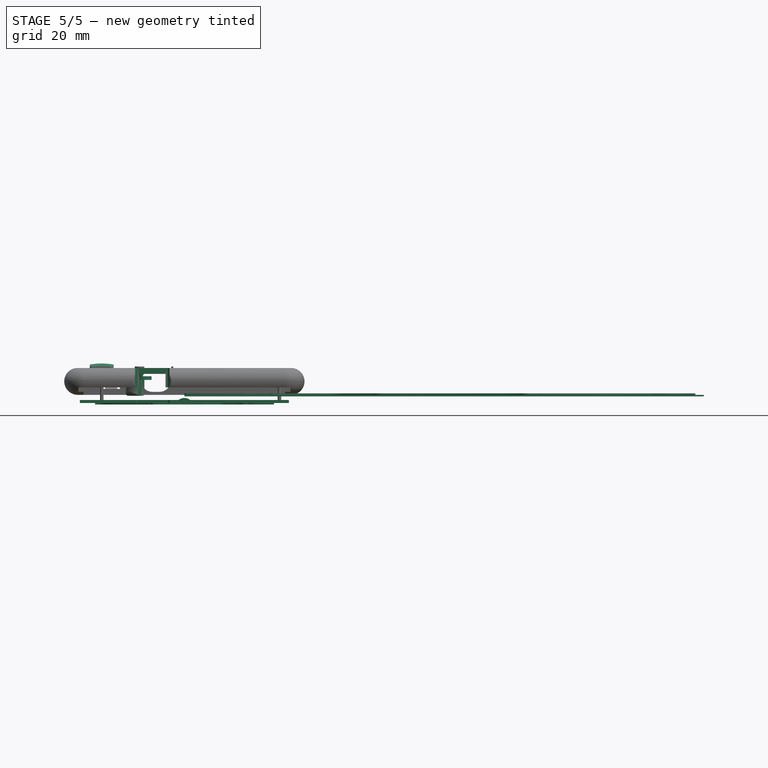
[diagram: stage 5 of 5 — front view after this stage's code; geometry added in this stage tinted green]
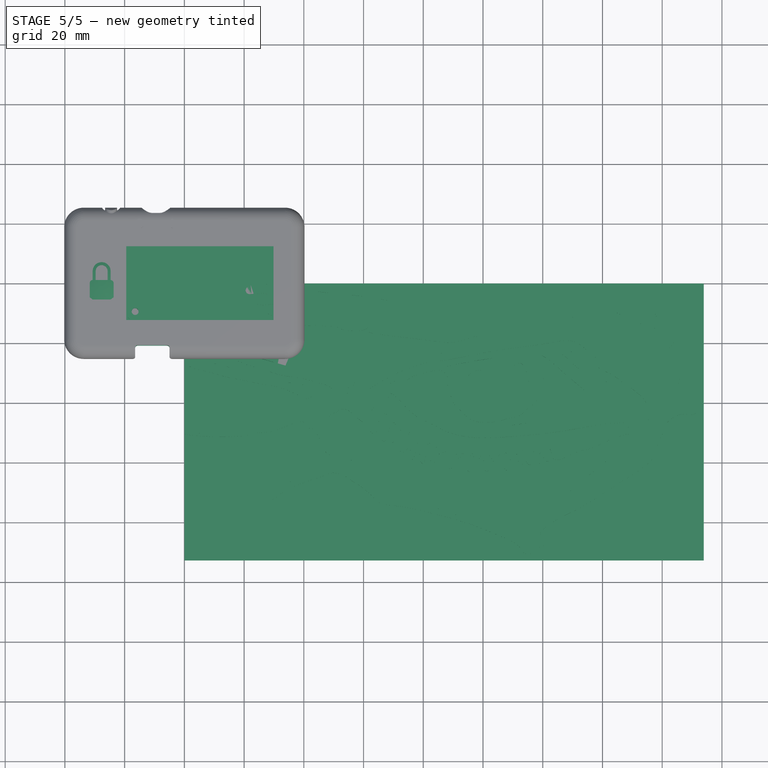
[diagram: stage 5 of 5 — top view after this stage's code; geometry added in this stage tinted green]
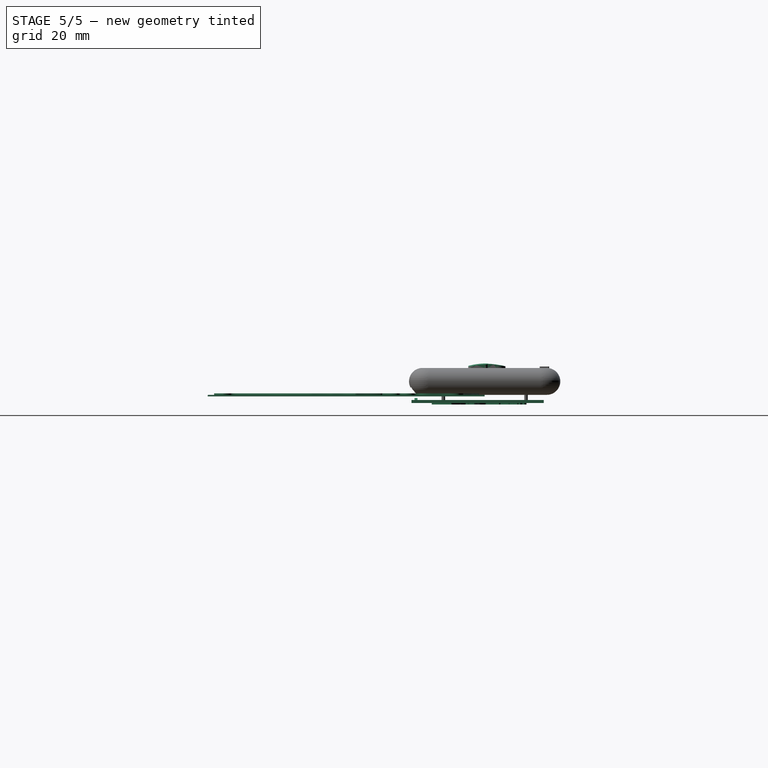
[diagram: stage 5 of 5 — right view after this stage's code; geometry added in this stage tinted green]
FEATURE [Sketcher::SketchObject] Sketch003
  MapMode = 5
  Support = -> [XY_Plane001]
  sketch-geometry (10):
    g0: LineSegment StartX=1 StartY=0 StartZ=0 EndX=7 EndY=0 EndZ=0
    g1: LineSegment StartX=8 StartY=1 StartZ=0 EndX=8 EndY=5.5 EndZ=0
    g2: LineSegment StartX=7 StartY=6.5 StartZ=0 EndX=1 EndY=6.5 EndZ=0
    g3: LineSegment StartX=0 StartY=5.5 StartZ=0 EndX=0 EndY=1 EndZ=0
    g4: ArcOfCircle CenterX=7 CenterY=5.5 CenterZ=0 NormalX=0 NormalY=0 NormalZ=1 AngleXU=0 Radius=1 StartAngle=8e-16 EndAngle=1.5708
    g5: ArcOfCircle CenterX=1 CenterY=5.5 CenterZ=0 NormalX=0 NormalY=0 NormalZ=1 AngleXU=0 Radius=1 StartAngle=1.5708 EndAngle=3.14159
    g6: ArcOfCircle CenterX=1 CenterY=1 CenterZ=0 NormalX=0 NormalY=0 NormalZ=1 AngleXU=0 Radius=1 StartAngle=3.14159 EndAngle=4.71239
    g7: ArcOfCircle CenterX=7 CenterY=1 CenterZ=0 NormalX=0 NormalY=0 NormalZ=1 AngleXU=0 Radius=1 StartAngle=4.71239 EndAngle=6.28319
    g8: LineSegment [constr] StartX=0 StartY=0 StartZ=0 EndX=0 EndY=11.4258 EndZ=0
    g9: LineSegment [constr] StartX=0 StartY=0 StartZ=0 EndX=9.53618 EndY=0 EndZ=0
  constraints (24):
    c: Horizontal(g0)
    c: Horizontal(g2)
    c: Vertical(g1)
    c: Vertical(g3)
    c: Tangent(g2,g4) = -1.5708
    c: Tangent(g1,g4) = -1.5708
    c: Tangent(g2,g5) = -1.5708
    c: Tangent(g3,g5) = -1.5708
    c: Tangent(g3,g6) = -1.5708
    c: Tangent(g0,g6) = -1.5708
    c: Tangent(g1,g7) = -1.5708
    c: Tangent(g0,g7) = -1.5708
    c: Radius(g5) = 1
    c: Radius(g4) = 1
    c: Radius(g6) = 1
    c: Radius(g7) = 1
    c: Coincident(g8,g-1)
    c: PointOnObject(g8,g-2)
    c: PointOnObject(g3,g8)
    c: Coincident(g9,g-1)
    c: PointOnObject(g9,g-1)
    c: PointOnObject(g0,g9)
    c: DistanceX(g3,g1) = 8
    c: DistanceY(g0,g2) = 6.5
FEATURE [PartDesign::Pad] Pad001
  Direction = (1,1,1)
  Length = 10
  Length2 = 100
  Profile = -> Sketch003
  Reversed = true
  Type = 0
FEATURE [Sketcher::SketchObject] Sketch004
  ExternalGeometry = -> [Pad001]
  MapMode = 5
  Support = -> [XY_Plane001]
  sketch-geometry (11):
    g0: LineSegment StartX=1 StartY=6.5 StartZ=0 EndX=2 EndY=6.5 EndZ=0
    g1: LineSegment StartX=2 StartY=6.5 StartZ=0 EndX=2 EndY=9.5 EndZ=0
    g2: LineSegment [constr] StartX=2 StartY=9.5 StartZ=0 EndX=1 EndY=9.5 EndZ=0
    g3: LineSegment StartX=1 StartY=9.5 StartZ=0 EndX=1 EndY=6.5 EndZ=0
    g4: LineSegment StartX=7 StartY=6.5 StartZ=0 EndX=6 EndY=6.5 EndZ=0
    g5: LineSegment StartX=6 StartY=6.5 StartZ=0 EndX=6 EndY=9.5 EndZ=0
    g6: LineSegment [constr] StartX=6 StartY=9.5 StartZ=0 EndX=7 EndY=9.5 EndZ=0
    g7: LineSegment StartX=7 StartY=9.5 StartZ=0 EndX=7 EndY=6.5 EndZ=0
    g8: ArcOfCircle CenterX=4 CenterY=9.5 CenterZ=0 NormalX=0 NormalY=0 NormalZ=1 AngleXU=0 Radius=2 StartAngle=8e-16 EndAngle=3.14159
    g9: LineSegment [constr] StartX=2 StartY=9.5 StartZ=0 EndX=6 EndY=9.5 EndZ=0
    g10: ArcOfCircle CenterX=4 CenterY=9.5 CenterZ=0 NormalX=0 NormalY=0 NormalZ=1 AngleXU=0 Radius=3 StartAngle=8e-16 EndAngle=3.14159
  constraints (29):
    c: Coincident(g0,g1)
    c: Coincident(g1,g2)
    c: Coincident(g2,g3)
    c: Coincident(g3,g0)
    c: Horizontal(g0)
    c: Horizontal(g2)
    c: Vertical(g1)
    c: Vertical(g3)
    c: Coincident(g0,g-3)
    c: Coincident(g4,g5)
    c: Coincident(g5,g6)
    c: Coincident(g6,g7)
    c: Coincident(g7,g4)
    c: Horizontal(g4)
    c: Horizontal(g6)
    c: Vertical(g5)
    c: Coincident(g4,g-3)
    c: Equal(g1,g5)
    c: Equal(g0,g4)
    c: Coincident(g8,g1)
    c: Coincident(g8,g5)
    c: Coincident(g9,g1)
    c: Coincident(g9,g5)
    c: PointOnObject(g8,g9)
    c: Coincident(g10,g2)
    c: Coincident(g10,g6)
    c: Coincident(g10,g8)
    c: DistanceY(g3,g3) = 3
    c: DistanceX(g0,g0) = 1
FEATURE [PartDesign::Pad] Pad002
  BaseFeature = -> Pad001
  Direction = (1,1,1)
  Length = 10
  Length2 = 100
  Profile = -> Sketch004
  Reversed = true
  Type = 0
FEATURE [PartDesign::Plane] DatumPlane
  AttachmentOffset = pos=(0,0,4) rot=(0,0,1;0rad)
  Length = 61.3403
  MapMode = 5
  Placement = pos=(4,-9e-16,9e-16) rot=(0.57735,0.57735,0.57735;2.0944rad)
  ResizeMode = 0
  Support = -> [YZ_Plane001]
  Width = 75.6411
FEATURE [PartDesign::Plane] DatumPlane001
  AttachmentOffset = pos=(0,0,-6) rot=(0,0,1;0rad)
  Length = 61.3403
  MapMode = 5
  Placement = pos=(0,6,1.3e-15) rot=(1,0,0;1.5708rad)
  ResizeMode = 0
  Support = -> [XZ_Plane001]
  Width = 75.6411
FEATURE [Sketcher::SketchObject] Sketch005
  ExternalGeometry = -> [DatumPlane]
  MapMode = 5
  Placement = pos=(0,6,1.3e-15) rot=(1,0,0;1.5708rad)
  Support = -> [DatumPlane001]
  sketch-geometry (4):
    g0: ArcOfCircle CenterX=4 CenterY=21 CenterZ=0 NormalX=0 NormalY=0 NormalZ=1 AngleXU=0 Radius=22.5 StartAngle=3.12731 EndAngle=4.71239
    g1: LineSegment StartX=-18.4977 StartY=21.3214 StartZ=0 EndX=-18.4977 EndY=-18.6489 EndZ=0
    g2: LineSegment StartX=-18.4977 StartY=-18.6489 StartZ=0 EndX=4 EndY=-19.4967 EndZ=0
    g3: LineSegment StartX=4 StartY=-19.4967 StartZ=0 EndX=4 EndY=-1.5 EndZ=0
  constraints (10):
    c: PointOnObject(g0,g-3)
    c: Radius(g0) = 22.5
    c: DistanceY(g-1,g0) = 21
    c: Vertical(g1)
    c: Coincident(g2,g1)
    c: PointOnObject(g2,g-3)
    c: Coincident(g3,g2)
    c: Vertical(g3)
    c: Coincident(g0,g1)
    c: Coincident(g0,g3)
FEATURE [Sketcher::SketchObject] Sketch006
  ExternalGeometry = -> [DatumPlane]
  MapMode = 5
  Placement = pos=(0,6,1.3e-15) rot=(1,0,0;1.5708rad)
  Support = -> [DatumPlane001]
  sketch-geometry (1):
    g0: LineSegment StartX=4 StartY=39.3008 StartZ=0 EndX=4 EndY=9.12502 EndZ=0
  constraints (2):
    c: PointOnObject(g0,g-3)
    c: PointOnObject(g0,g-3)
FEATURE [PartDesign::Groove] Groove
  Angle = 360
  Axis = (2e-16,2e-16,-1)
  Base = (4,6,39.3008)
  BaseFeature = -> Pad002
  Profile = -> Sketch005
  ReferenceAxis = -> Sketch006 [Edge1]
  Reversed = true
FEATURE [PartDesign::Body] Body  label="body_without_usb_cutout"
  Group = -> [Sketch,Pad,Sketch001,Pocket,Sketch002,AdditivePipe,DatumPlane003,Sketch007,Pocket001,Sketch008,Pad003,Pocket002,DatumPlane004,Sketch011,Pocket003,DatumPlane005,Sketch012,Sketch013,Pocket004,Sketch014,Pocket005,DatumPlane006,Sketch016,Pocket006,Sketch017,Pocket007,Sketch018,Sketch019,Pocket008,Sketch020,Pocket009,Sketch021,Pad004,Sketch022,Pad005,Sketch023,Pad006,Sketch024,Pocket010,DatumPlane009,+3 more]
  Origin = -> Origin
  Tip = -> Pocket013
FEATURE [PartDesign::Plane] DatumPlane002
  Length = 60
  MapMode = 2
  ResizeMode = 0
  Support = -> [Body]
  Width = 60
FEATURE [PartDesign::Body] Body001  label="lock_origin"
  Group = -> [Sketch003,Pad001,Sketch004,Pad002,DatumPlane,DatumPlane001,Sketch005,Sketch006,Groove,DatumPlane002]
  Origin = -> Origin001
  Tip = -> Groove
FEATURE [PartDesign::FeatureBase] Clone
  BaseFeature = -> Body001
FEATURE [PartDesign::Body] Body002  label="lock"
  BaseFeature = -> Body001
  Group = -> [Clone]
  Origin = -> Origin002
  Placement = pos=(-23.7,-5.5,9) rot=(0,1,0;3.14159rad)
  Tip = -> Clone
FEATURE [Sketcher::SketchObject] Sketch033
  sketch-geometry (359):
    g0: BSplineCurve PolesCount=4 KnotsCount=2 Degree=3 IsPeriodic=0
    g1: BSplineCurve PolesCount=4 KnotsCount=2 Degree=3 IsPeriodic=0
    g2: BSplineCurve PolesCount=4 KnotsCount=2 Degree=3 IsPeriodic=0
    g3: BSplineCurve PolesCount=4 KnotsCount=2 Degree=3 IsPeriodic=0
    g4: BSplineCurve PolesCount=4 KnotsCount=2 Degree=3 IsPeriodic=0
    g5: BSplineCurve PolesCount=4 KnotsCount=2 Degree=3 IsPeriodic=0
    g6: BSplineCurve PolesCount=4 KnotsCount=2 Degree=3 IsPeriodic=0
    g7: BSplineCurve PolesCount=4 KnotsCount=2 Degree=3 IsPeriodic=0
    g8: BSplineCurve PolesCount=4 KnotsCount=2 Degree=3 IsPeriodic=0
    g9: BSplineCurve PolesCount=4 KnotsCount=2 Degree=3 IsPeriodic=0
    g10: BSplineCurve PolesCount=4 KnotsCount=2 Degree=3 IsPeriodic=0
    g11: BSplineCurve PolesCount=4 KnotsCount=2 Degree=3 IsPeriodic=0
    g12: BSplineCurve PolesCount=4 KnotsCount=2 Degree=3 IsPeriodic=0
    g13: BSplineCurve PolesCount=4 KnotsCount=2 Degree=3 IsPeriodic=0
    g14: BSplineCurve PolesCount=4 KnotsCount=2 Degree=3 IsPeriodic=0
    g15: BSplineCurve PolesCount=4 KnotsCount=2 Degree=3 IsPeriodic=0
    g16: BSplineCurve PolesCount=4 KnotsCount=2 Degree=3 IsPeriodic=0
    g17: BSplineCurve PolesCount=4 KnotsCount=2 Degree=3 IsPeriodic=0
    g18: BSplineCurve PolesCount=4 KnotsCount=2 Degree=3 IsPeriodic=0
    g19: BSplineCurve PolesCount=4 KnotsCount=2 Degree=3 IsPeriodic=0
    g20: BSplineCurve PolesCount=4 KnotsCount=2 Degree=3 IsPeriodic=0
    g21: BSplineCurve PolesCount=4 KnotsCount=2 Degree=3 IsPeriodic=0
    g22: BSplineCurve PolesCount=4 KnotsCount=2 Degree=3 IsPeriodic=0
    g23: BSplineCurve PolesCount=4 KnotsCount=2 Degree=3 IsPeriodic=0
    g24: BSplineCurve PolesCount=4 KnotsCount=2 Degree=3 IsPeriodic=0
    g25: BSplineCurve PolesCount=4 KnotsCount=2 Degree=3 IsPeriodic=0
    g26: BSplineCurve PolesCount=4 KnotsCount=2 Degree=3 IsPeriodic=0
    g27: BSplineCurve PolesCount=4 KnotsCount=2 Degree=3 IsPeriodic=0
    g28: BSplineCurve PolesCount=4 KnotsCount=2 Degree=3 IsPeriodic=0
    g29: BSplineCurve PolesCount=4 KnotsCount=2 Degree=3 IsPeriodic=0
    g30: BSplineCurve PolesCount=4 KnotsCount=2 Degree=3 IsPeriodic=0
    g31: BSplineCurve PolesCount=4 KnotsCount=2 Degree=3 IsPeriodic=0
    g32: BSplineCurve PolesCount=4 KnotsCount=2 Degree=3 IsPeriodic=0
    g33: BSplineCurve PolesCount=4 KnotsCount=2 Degree=3 IsPeriodic=0
    g34: BSplineCurve PolesCount=4 KnotsCount=2 Degree=3 IsPeriodic=0
    g35: BSplineCurve PolesCount=4 KnotsCount=2 Degree=3 IsPeriodic=0
    g36: BSplineCurve PolesCount=4 KnotsCount=2 Degree=3 IsPeriodic=0
    g37: BSplineCurve PolesCount=4 KnotsCount=2 Degree=3 IsPeriodic=0
    g38: BSplineCurve PolesCount=4 KnotsCount=2 Degree=3 IsPeriodic=0
    g39: BSplineCurve PolesCount=4 KnotsCount=2 Degree=3 IsPeriodic=0
    g40: BSplineCurve PolesCount=4 KnotsCount=2 Degree=3 IsPeriodic=0
    g41: BSplineCurve PolesCount=4 KnotsCount=2 Degree=3 IsPeriodic=0
    g42: BSplineCurve PolesCount=4 KnotsCount=2 Degree=3 IsPeriodic=0
    g43: BSplineCurve PolesCount=4 KnotsCount=2 Degree=3 IsPeriodic=0
    g44: BSplineCurve PolesCount=4 KnotsCount=2 Degree=3 IsPeriodic=0
    g45: BSplineCurve PolesCount=4 KnotsCount=2 Degree=3 IsPeriodic=0
    g46: BSplineCurve PolesCount=4 KnotsCount=2 Degree=3 IsPeriodic=0
    g47: BSplineCurve PolesCount=4 KnotsCount=2 Degree=3 IsPeriodic=0
    g48: BSplineCurve PolesCount=4 KnotsCount=2 Degree=3 IsPeriodic=0
    g49: BSplineCurve PolesCount=4 KnotsCount=2 Degree=3 IsPeriodic=0
    g50: BSplineCurve PolesCount=4 KnotsCount=2 Degree=3 IsPeriodic=0
    g51: BSplineCurve PolesCount=4 KnotsCount=2 Degree=3 IsPeriodic=0
    g52: BSplineCurve PolesCount=4 KnotsCount=2 Degree=3 IsPeriodic=0
    g53: BSplineCurve PolesCount=4 KnotsCount=2 Degree=3 IsPeriodic=0
    g54: BSplineCurve PolesCount=4 KnotsCount=2 Degree=3 IsPeriodic=0
    g55: BSplineCurve PolesCount=4 KnotsCount=2 Degree=3 IsPeriodic=0
    g56: BSplineCurve PolesCount=4 KnotsCount=2 Degree=3 IsPeriodic=0
    g57: BSplineCurve PolesCount=4 KnotsCount=2 Degree=3 IsPeriodic=0
    g58: BSplineCurve PolesCount=4 KnotsCount=2 Degree=3 IsPeriodic=0
    g59: BSplineCurve PolesCount=4 KnotsCount=2 Degree=3 IsPeriodic=0
    g60: BSplineCurve PolesCount=4 KnotsCount=2 Degree=3 IsPeriodic=0
    g61: BSplineCurve PolesCount=4 KnotsCount=2 Degree=3 IsPeriodic=0
    g62: BSplineCurve PolesCount=4 KnotsCount=2 Degree=3 IsPeriodic=0
    g63: BSplineCurve PolesCount=4 KnotsCount=2 Degree=3 IsPeriodic=0
    g64: BSplineCurve PolesCount=4 KnotsCount=2 Degree=3 IsPeriodic=0
    g65: BSplineCurve PolesCount=4 KnotsCount=2 Degree=3 IsPeriodic=0
    g66: BSplineCurve PolesCount=4 KnotsCount=2 Degree=3 IsPeriodic=0
    g67: BSplineCurve PolesCount=4 KnotsCount=2 Degree=3 IsPeriodic=0
    g68: BSplineCurve PolesCount=4 KnotsCount=2 Degree=3 IsPeriodic=0
    g69: BSplineCurve PolesCount=4 KnotsCount=2 Degree=3 IsPeriodic=0
    g70: BSplineCurve PolesCount=4 KnotsCount=2 Degree=3 IsPeriodic=0
    g71: BSplineCurve PolesCount=4 KnotsCount=2 Degree=3 IsPeriodic=0
    g72: BSplineCurve PolesCount=4 KnotsCount=2 Degree=3 IsPeriodic=0
    g73: BSplineCurve PolesCount=4 KnotsCount=2 Degree=3 IsPeriodic=0
    g74: BSplineCurve PolesCount=4 KnotsCount=2 Degree=3 IsPeriodic=0
    g75: BSplineCurve PolesCount=4 KnotsCount=2 Degree=3 IsPeriodic=0
    g76: BSplineCurve PolesCount=4 KnotsCount=2 Degree=3 IsPeriodic=0
    g77: BSplineCurve PolesCount=4 KnotsCount=2 Degree=3 IsPeriodic=0
    g78: BSplineCurve PolesCount=4 KnotsCount=2 Degree=3 IsPeriodic=0
    g79: BSplineCurve PolesCount=4 KnotsCount=2 Degree=3 IsPeriodic=0
    g80: BSplineCurve PolesCount=4 KnotsCount=2 Degree=3 IsPeriodic=0
    g81: BSplineCurve PolesCount=4 KnotsCount=2 Degree=3 IsPeriodic=0
    g82: BSplineCurve PolesCount=4 KnotsCount=2 Degree=3 IsPeriodic=0
    g83: BSplineCurve PolesCount=4 KnotsCount=2 Degree=3 IsPeriodic=0
    g84: BSplineCurve PolesCount=4 KnotsCount=2 Degree=3 IsPeriodic=0
    g85: BSplineCurve PolesCount=4 KnotsCount=2 Degree=3 IsPeriodic=0
    g86: BSplineCurve PolesCount=4 KnotsCount=2 Degree=3 IsPeriodic=0
    g87: BSplineCurve PolesCount=4 KnotsCount=2 Degree=3 IsPeriodic=0
    g88: BSplineCurve PolesCount=4 KnotsCount=2 Degree=3 IsPeriodic=0
    g89: BSplineCurve PolesCount=4 KnotsCount=2 Degree=3 IsPeriodic=0
    g90: BSplineCurve PolesCount=4 KnotsCount=2 Degree=3 IsPeriodic=0
    g91: BSplineCurve PolesCount=4 KnotsCount=2 Degree=3 IsPeriodic=0
    g92: BSplineCurve PolesCount=4 KnotsCount=2 Degree=3 IsPeriodic=0
    g93: BSplineCurve PolesCount=4 KnotsCount=2 Degree=3 IsPeriodic=0
    g94: BSplineCurve PolesCount=4 KnotsCount=2 Degree=3 IsPeriodic=0
    g95: BSplineCurve PolesCount=4 KnotsCount=2 Degree=3 IsPeriodic=0
    g96: BSplineCurve PolesCount=4 KnotsCount=2 Degree=3 IsPeriodic=0
    g97: BSplineCurve PolesCount=4 KnotsCount=2 Degree=3 IsPeriodic=0
    g98: BSplineCurve PolesCount=4 KnotsCount=2 Degree=3 IsPeriodic=0
    g99: BSplineCurve PolesCount=4 KnotsCount=2 Degree=3 IsPeriodic=0
    g100: BSplineCurve PolesCount=4 KnotsCount=2 Degree=3 IsPeriodic=0
    g101: BSplineCurve PolesCount=4 KnotsCount=2 Degree=3 IsPeriodic=0
    g102: BSplineCurve PolesCount=4 KnotsCount=2 Degree=3 IsPeriodic=0
    g103: BSplineCurve PolesCount=4 KnotsCount=2 Degree=3 IsPeriodic=0
    g104: BSplineCurve PolesCount=4 KnotsCount=2 Degree=3 IsPeriodic=0
    g105: BSplineCurve PolesCount=4 KnotsCount=2 Degree=3 IsPeriodic=0
    g106: BSplineCurve PolesCount=4 KnotsCount=2 Degree=3 IsPeriodic=0
    g107: BSplineCurve PolesCount=4 KnotsCount=2 Degree=3 IsPeriodic=0
    g108: BSplineCurve PolesCount=4 KnotsCount=2 Degree=3 IsPeriodic=0
    g109: BSplineCurve PolesCount=4 KnotsCount=2 Degree=3 IsPeriodic=0
    g110: BSplineCurve PolesCount=4 KnotsCount=2 Degree=3 IsPeriodic=0
    g111: BSplineCurve PolesCount=4 KnotsCount=2 Degree=3 IsPeriodic=0
    g112: BSplineCurve PolesCount=4 KnotsCount=2 Degree=3 IsPeriodic=0
    g113: BSplineCurve PolesCount=4 KnotsCount=2 Degree=3 IsPeriodic=0
    g114: BSplineCurve PolesCount=4 KnotsCount=2 Degree=3 IsPeriodic=0
    g115: BSplineCurve PolesCount=4 KnotsCount=2 Degree=3 IsPeriodic=0
    g116: BSplineCurve PolesCount=4 KnotsCount=2 Degree=3 IsPeriodic=0
    g117: BSplineCurve PolesCount=4 KnotsCount=2 Degree=3 IsPeriodic=0
    g118: BSplineCurve PolesCount=4 KnotsCount=2 Degree=3 IsPeriodic=0
    g119: BSplineCurve PolesCount=4 KnotsCount=2 Degree=3 IsPeriodic=0
    g120: BSplineCurve PolesCount=4 KnotsCount=2 Degree=3 IsPeriodic=0
    g121: BSplineCurve PolesCount=4 KnotsCount=2 Degree=3 IsPeriodic=0
    g122: BSplineCurve PolesCount=4 KnotsCount=2 Degree=3 IsPeriodic=0
    g123: BSplineCurve PolesCount=4 KnotsCount=2 Degree=3 IsPeriodic=0
    g124: BSplineCurve PolesCount=4 KnotsCount=2 Degree=3 IsPeriodic=0
    g125: BSplineCurve PolesCount=4 KnotsCount=2 Degree=3 IsPeriodic=0
    g126: BSplineCurve PolesCount=4 KnotsCount=2 Degree=3 IsPeriodic=0
    g127: BSplineCurve PolesCount=4 KnotsCount=2 Degree=3 IsPeriodic=0
    g128: BSplineCurve PolesCount=4 KnotsCount=2 Degree=3 IsPeriodic=0
    g129: BSplineCurve PolesCount=4 KnotsCount=2 Degree=3 IsPeriodic=0
    g130: BSplineCurve PolesCount=4 KnotsCount=2 Degree=3 IsPeriodic=0
    g131: BSplineCurve PolesCount=4 KnotsCount=2 Degree=3 IsPeriodic=0
    g132: BSplineCurve PolesCount=4 KnotsCount=2 Degree=3 IsPeriodic=0
    g133: BSplineCurve PolesCount=4 KnotsCount=2 Degree=3 IsPeriodic=0
    g134: BSplineCurve PolesCount=4 KnotsCount=2 Degree=3 IsPeriodic=0
    g135: BSplineCurve PolesCount=4 KnotsCount=2 Degree=3 IsPeriodic=0
    g136: BSplineCurve PolesCount=4 KnotsCount=2 Degree=3 IsPeriodic=0
    g137: BSplineCurve PolesCount=4 KnotsCount=2 Degree=3 IsPeriodic=0
    g138: BSplineCurve PolesCount=4 KnotsCount=2 Degree=3 IsPeriodic=0
    g139: BSplineCurve PolesCount=4 KnotsCount=2 Degree=3 IsPeriodic=0
    g140: BSplineCurve PolesCount=4 KnotsCount=2 Degree=3 IsPeriodic=0
    g141: BSplineCurve PolesCount=4 KnotsCount=2 Degree=3 IsPeriodic=0
    g142: BSplineCurve PolesCount=4 KnotsCount=2 Degree=3 IsPeriodic=0
    g143: BSplineCurve PolesCount=4 KnotsCount=2 Degree=3 IsPeriodic=0
    g144: BSplineCurve PolesCount=4 KnotsCount=2 Degree=3 IsPeriodic=0
    g145: BSplineCurve PolesCount=4 KnotsCount=2 Degree=3 IsPeriodic=0
    g146: BSplineCurve PolesCount=4 KnotsCount=2 Degree=3 IsPeriodic=0
    g147: BSplineCurve PolesCount=4 KnotsCount=2 Degree=3 IsPeriodic=0
    g148: BSplineCurve PolesCount=4 KnotsCount=2 Degree=3 IsPeriodic=0
    g149: BSplineCurve PolesCount=4 KnotsCount=2 Degree=3 IsPeriodic=0
    g150: BSplineCurve PolesCount=4 KnotsCount=2 Degree=3 IsPeriodic=0
    g151: BSplineCurve PolesCount=4 KnotsCount=2 Degree=3 IsPeriodic=0
    g152: BSplineCurve PolesCount=4 KnotsCount=2 Degree=3 IsPeriodic=0
    g153: BSplineCurve PolesCount=4 KnotsCount=2 Degree=3 IsPeriodic=0
    g154: BSplineCurve PolesCount=4 KnotsCount=2 Degree=3 IsPeriodic=0
    g155: BSplineCurve PolesCount=4 KnotsCount=2 Degree=3 IsPeriodic=0
    g156: BSplineCurve PolesCount=4 KnotsCount=2 Degree=3 IsPeriodic=0
    g157: BSplineCurve PolesCount=4 KnotsCount=2 Degree=3 IsPeriodic=0
    g158: BSplineCurve PolesCount=4 KnotsCount=2 Degree=3 IsPeriodic=0
    g159: BSplineCurve PolesCount=4 KnotsCount=2 Degree=3 IsPeriodic=0
    g160: BSplineCurve PolesCount=4 KnotsCount=2 Degree=3 IsPeriodic=0
    g161: BSplineCurve PolesCount=4 KnotsCount=2 Degree=3 IsPeriodic=0
    g162: BSplineCurve PolesCount=4 KnotsCount=2 Degree=3 IsPeriodic=0
    g163: BSplineCurve PolesCount=4 KnotsCount=2 Degree=3 IsPeriodic=0
    g164: BSplineCurve PolesCount=4 KnotsCount=2 Degree=3 IsPeriodic=0
    g165: BSplineCurve PolesCount=2 KnotsCount=2 Degree=1 IsPeriodic=0
    g166: BSplineCurve PolesCount=4 KnotsCount=2 Degree=3 IsPeriodic=0
    g167: BSplineCurve PolesCount=4 KnotsCount=2 Degree=3 IsPeriodic=0
    g168: BSplineCurve PolesCount=4 KnotsCount=2 Degree=3 IsPeriodic=0
    g169: BSplineCurve PolesCount=4 KnotsCount=2 Degree=3 IsPeriodic=0
    g170: BSplineCurve PolesCount=4 KnotsCount=2 Degree=3 IsPeriodic=0
    g171: BSplineCurve PolesCount=4 KnotsCount=2 Degree=3 IsPeriodic=0
    g172: BSplineCurve PolesCount=4 KnotsCount=2 Degree=3 IsPeriodic=0
    g173: BSplineCurve PolesCount=4 KnotsCount=2 Degree=3 IsPeriodic=0
    g174: BSplineCurve PolesCount=4 KnotsCount=2 Degree=3 IsPeriodic=0
    g175: BSplineCurve PolesCount=4 KnotsCount=2 Degree=3 IsPeriodic=0
    g176: BSplineCurve PolesCount=4 KnotsCount=2 Degree=3 IsPeriodic=0
    g177: BSplineCurve PolesCount=4 KnotsCount=2 Degree=3 IsPeriodic=0
    g178: BSplineCurve PolesCount=4 KnotsCount=2 Degree=3 IsPeriodic=0
    g179: BSplineCurve PolesCount=4 KnotsCount=2 Degree=3 IsPeriodic=0
    g180: BSplineCurve PolesCount=4 KnotsCount=2 Degree=3 IsPeriodic=0
    g181: BSplineCurve PolesCount=4 KnotsCount=2 Degree=3 IsPeriodic=0
    g182: BSplineCurve PolesCount=4 KnotsCount=2 Degree=3 IsPeriodic=0
    g183: BSplineCurve PolesCount=4 KnotsCount=2 Degree=3 IsPeriodic=0
    g184: BSplineCurve PolesCount=4 KnotsCount=2 Degree=3 IsPeriodic=0
    g185: BSplineCurve PolesCount=4 KnotsCount=2 Degree=3 IsPeriodic=0
    g186: BSplineCurve PolesCount=4 KnotsCount=2 Degree=3 IsPeriodic=0
    g187: BSplineCurve PolesCount=4 KnotsCount=2 Degree=3 IsPeriodic=0
    g188: BSplineCurve PolesCount=4 KnotsCount=2 Degree=3 IsPeriodic=0
    g189: BSplineCurve PolesCount=4 KnotsCount=2 Degree=3 IsPeriodic=0
    g190: BSplineCurve PolesCount=4 KnotsCount=2 Degree=3 IsPeriodic=0
    g191: BSplineCurve PolesCount=4 KnotsCount=2 Degree=3 IsPeriodic=0
    g192: BSplineCurve PolesCount=4 KnotsCount=2 Degree=3 IsPeriodic=0
    g193: BSplineCurve PolesCount=4 KnotsCount=2 Degree=3 IsPeriodic=0
    g194: BSplineCurve PolesCount=4 KnotsCount=2 Degree=3 IsPeriodic=0
    g195: BSplineCurve PolesCount=4 KnotsCount=2 Degree=3 IsPeriodic=0
    g196: BSplineCurve PolesCount=4 KnotsCount=2 Degree=3 IsPeriodic=0
    g197: BSplineCurve PolesCount=4 KnotsCount=2 Degree=3 IsPeriodic=0
    g198: BSplineCurve PolesCount=4 KnotsCount=2 Degree=3 IsPeriodic=0
    g199: BSplineCurve PolesCount=4 KnotsCount=2 Degree=3 IsPeriodic=0
    g200: BSplineCurve PolesCount=4 KnotsCount=2 Degree=3 IsPeriodic=0
    g201: BSplineCurve PolesCount=4 KnotsCount=2 Degree=3 IsPeriodic=0
    g202: BSplineCurve PolesCount=4 KnotsCount=2 Degree=3 IsPeriodic=0
    g203: BSplineCurve PolesCount=4 KnotsCount=2 Degree=3 IsPeriodic=0
    g204: BSplineCurve PolesCount=4 KnotsCount=2 Degree=3 IsPeriodic=0
    g205: BSplineCurve PolesCount=4 KnotsCount=2 Degree=3 IsPeriodic=0
    g206: BSplineCurve PolesCount=4 KnotsCount=2 Degree=3 IsPeriodic=0
    g207: BSplineCurve PolesCount=4 KnotsCount=2 Degree=3 IsPeriodic=0
    g208: BSplineCurve PolesCount=4 KnotsCount=2 Degree=3 IsPeriodic=0
    g209: BSplineCurve PolesCount=4 KnotsCount=2 Degree=3 IsPeriodic=0
    g210: BSplineCurve PolesCount=4 KnotsCount=2 Degree=3 IsPeriodic=0
    g211: BSplineCurve PolesCount=4 KnotsCount=2 Degree=3 IsPeriodic=0
    g212: BSplineCurve PolesCount=4 KnotsCount=2 Degree=3 IsPeriodic=0
    g213: BSplineCurve PolesCount=4 KnotsCount=2 Degree=3 IsPeriodic=0
    g214: BSplineCurve PolesCount=4 KnotsCount=2 Degree=3 IsPeriodic=0
    g215: BSplineCurve PolesCount=4 KnotsCount=2 Degree=3 IsPeriodic=0
    g216: BSplineCurve PolesCount=4 KnotsCount=2 Degree=3 IsPeriodic=0
    g217: BSplineCurve PolesCount=4 KnotsCount=2 Degree=3 IsPeriodic=0
    g218: BSplineCurve PolesCount=4 KnotsCount=2 Degree=3 IsPeriodic=0
    g219: BSplineCurve PolesCount=4 KnotsCount=2 Degree=3 IsPeriodic=0
    g220: BSplineCurve PolesCount=4 KnotsCount=2 Degree=3 IsPeriodic=0
    g221: BSplineCurve PolesCount=4 KnotsCount=2 Degree=3 IsPeriodic=0
    g222: BSplineCurve PolesCount=4 KnotsCount=2 Degree=3 IsPeriodic=0
    g223: BSplineCurve PolesCount=4 KnotsCount=2 Degree=3 IsPeriodic=0
    g224: BSplineCurve PolesCount=4 KnotsCount=2 Degree=3 IsPeriodic=0
    g225: BSplineCurve PolesCount=4 KnotsCount=2 Degree=3 IsPeriodic=0
    g226: BSplineCurve PolesCount=4 KnotsCount=2 Degree=3 IsPeriodic=0
    g227: BSplineCurve PolesCount=4 KnotsCount=2 Degree=3 IsPeriodic=0
    g228: BSplineCurve PolesCount=4 KnotsCount=2 Degree=3 IsPeriodic=0
    g229: BSplineCurve PolesCount=4 KnotsCount=2 Degree=3 IsPeriodic=0
    g230: BSplineCurve PolesCount=4 KnotsCount=2 Degree=3 IsPeriodic=0
    g231: BSplineCurve PolesCount=4 KnotsCount=2 Degree=3 IsPeriodic=0
    g232: BSplineCurve PolesCount=4 KnotsCount=2 Degree=3 IsPeriodic=0
    g233: BSplineCurve PolesCount=4 KnotsCount=2 Degree=3 IsPeriodic=0
    g234: BSplineCurve PolesCount=4 KnotsCount=2 Degree=3 IsPeriodic=0
    g235: BSplineCurve PolesCount=4 KnotsCount=2 Degree=3 IsPeriodic=0
    g236: BSplineCurve PolesCount=4 KnotsCount=2 Degree=3 IsPeriodic=0
    g237: BSplineCurve PolesCount=4 KnotsCount=2 Degree=3 IsPeriodic=0
    g238: BSplineCurve PolesCount=4 KnotsCount=2 Degree=3 IsPeriodic=0
    g239: BSplineCurve PolesCount=4 KnotsCount=2 Degree=3 IsPeriodic=0
    g240: BSplineCurve PolesCount=4 KnotsCount=2 Degree=3 IsPeriodic=0
    g241: BSplineCurve PolesCount=4 KnotsCount=2 Degree=3 IsPeriodic=0
    g242: BSplineCurve PolesCount=4 KnotsCount=2 Degree=3 IsPeriodic=0
    g243: BSplineCurve PolesCount=4 KnotsCount=2 Degree=3 IsPeriodic=0
    g244: BSplineCurve PolesCount=4 KnotsCount=2 Degree=3 IsPeriodic=0
    g245: BSplineCurve PolesCount=4 KnotsCount=2 Degree=3 IsPeriodic=0
    g246: BSplineCurve PolesCount=4 KnotsCount=2 Degree=3 IsPeriodic=0
    g247: BSplineCurve PolesCount=4 KnotsCount=2 Degree=3 IsPeriodic=0
    g248: BSplineCurve PolesCount=4 KnotsCount=2 Degree=3 IsPeriodic=0
    g249: BSplineCurve PolesCount=4 KnotsCount=2 Degree=3 IsPeriodic=0
    g250: BSplineCurve PolesCount=4 KnotsCount=2 Degree=3 IsPeriodic=0
    g251: BSplineCurve PolesCount=4 KnotsCount=2 Degree=3 IsPeriodic=0
    g252: BSplineCurve PolesCount=4 KnotsCount=2 Degree=3 IsPeriodic=0
    g253: BSplineCurve PolesCount=4 KnotsCount=2 Degree=3 IsPeriodic=0
    g254: BSplineCurve PolesCount=4 KnotsCount=2 Degree=3 IsPeriodic=0
    g255: BSplineCurve PolesCount=4 KnotsCount=2 Degree=3 IsPeriodic=0
    g256: BSplineCurve PolesCount=4 KnotsCount=2 Degree=3 IsPeriodic=0
    g257: BSplineCurve PolesCount=4 KnotsCount=2 Degree=3 IsPeriodic=0
    g258: BSplineCurve PolesCount=4 KnotsCount=2 Degree=3 IsPeriodic=0
    g259: BSplineCurve PolesCount=4 KnotsCount=2 Degree=3 IsPeriodic=0
    g260: BSplineCurve PolesCount=4 KnotsCount=2 Degree=3 IsPeriodic=0
    g261: BSplineCurve PolesCount=4 KnotsCount=2 Degree=3 IsPeriodic=0
    g262: BSplineCurve PolesCount=4 KnotsCount=2 Degree=3 IsPeriodic=0
    g263: BSplineCurve PolesCount=4 KnotsCount=2 Degree=3 IsPeriodic=0
    g264: BSplineCurve PolesCount=4 KnotsCount=2 Degree=3 IsPeriodic=0
    g265: BSplineCurve PolesCount=2 KnotsCount=2 Degree=1 IsPeriodic=0
    g266: BSplineCurve PolesCount=4 KnotsCount=2 Degree=3 IsPeriodic=0
    g267: BSplineCurve PolesCount=4 KnotsCount=2 Degree=3 IsPeriodic=0
    g268: BSplineCurve PolesCount=4 KnotsCount=2 Degree=3 IsPeriodic=0
    g269: BSplineCurve PolesCount=4 KnotsCount=2 Degree=3 IsPeriodic=0
    g270: BSplineCurve PolesCount=4 KnotsCount=2 Degree=3 IsPeriodic=0
    g271: BSplineCurve PolesCount=4 KnotsCount=2 Degree=3 IsPeriodic=0
    g272: BSplineCurve PolesCount=4 KnotsCount=2 Degree=3 IsPeriodic=0
    g273: BSplineCurve PolesCount=4 KnotsCount=2 Degree=3 IsPeriodic=0
    g274: BSplineCurve PolesCount=4 KnotsCount=2 Degree=3 IsPeriodic=0
    g275: BSplineCurve PolesCount=4 KnotsCount=2 Degree=3 IsPeriodic=0
    g276: BSplineCurve PolesCount=4 KnotsCount=2 Degree=3 IsPeriodic=0
    g277: BSplineCurve PolesCount=4 KnotsCount=2 Degree=3 IsPeriodic=0
    g278: BSplineCurve PolesCount=4 KnotsCount=2 Degree=3 IsPeriodic=0
    g279: BSplineCurve PolesCount=4 KnotsCount=2 Degree=3 IsPeriodic=0
    g280: BSplineCurve PolesCount=4 KnotsCount=2 Degree=3 IsPeriodic=0
    g281: BSplineCurve PolesCount=4 KnotsCount=2 Degree=3 IsPeriodic=0
    g282: BSplineCurve PolesCount=4 KnotsCount=2 Degree=3 IsPeriodic=0
    g283: BSplineCurve PolesCount=4 KnotsCount=2 Degree=3 IsPeriodic=0
    g284: BSplineCurve PolesCount=2 KnotsCount=2 Degree=1 IsPeriodic=0
    g285: BSplineCurve PolesCount=4 KnotsCount=2 Degree=3 IsPeriodic=0
    g286: BSplineCurve PolesCount=4 KnotsCount=2 Degree=3 IsPeriodic=0
    g287: BSplineCurve PolesCount=4 KnotsCount=2 Degree=3 IsPeriodic=0
    g288: BSplineCurve PolesCount=4 KnotsCount=2 Degree=3 IsPeriodic=0
    g289: BSplineCurve PolesCount=4 KnotsCount=2 Degree=3 IsPeriodic=0
    g290: BSplineCurve PolesCount=4 KnotsCount=2 Degree=3 IsPeriodic=0
    g291: BSplineCurve PolesCount=4 KnotsCount=2 Degree=3 IsPeriodic=0
    g292: BSplineCurve PolesCount=4 KnotsCount=2 Degree=3 IsPeriodic=0
    g293: BSplineCurve PolesCount=4 KnotsCount=2 Degree=3 IsPeriodic=0
    g294: BSplineCurve PolesCount=4 KnotsCount=2 Degree=3 IsPeriodic=0
    g295: BSplineCurve PolesCount=4 KnotsCount=2 Degree=3 IsPeriodic=0
    g296: BSplineCurve PolesCount=4 KnotsCount=2 Degree=3 IsPeriodic=0
    g297: BSplineCurve PolesCount=4 KnotsCount=2 Degree=3 IsPeriodic=0
    g298: BSplineCurve PolesCount=4 KnotsCount=2 Degree=3 IsPeriodic=0
    g299: BSplineCurve PolesCount=4 KnotsCount=2 Degree=3 IsPeriodic=0
    g300: BSplineCurve PolesCount=4 KnotsCount=2 Degree=3 IsPeriodic=0
    g301: BSplineCurve PolesCount=4 KnotsCount=2 Degree=3 IsPeriodic=0
    g302: BSplineCurve PolesCount=4 KnotsCount=2 Degree=3 IsPeriodic=0
    g303: BSplineCurve PolesCount=4 KnotsCount=2 Degree=3 IsPeriodic=0
    g304: BSplineCurve PolesCount=4 KnotsCount=2 Degree=3 IsPeriodic=0
    g305: BSplineCurve PolesCount=4 KnotsCount=2 Degree=3 IsPeriodic=0
    g306: BSplineCurve PolesCount=4 KnotsCount=2 Degree=3 IsPeriodic=0
    g307: BSplineCurve PolesCount=4 KnotsCount=2 Degree=3 IsPeriodic=0
    g308: BSplineCurve PolesCount=4 KnotsCount=2 Degree=3 IsPeriodic=0
    g309: BSplineCurve PolesCount=4 KnotsCount=2 Degree=3 IsPeriodic=0
    g310: BSplineCurve PolesCount=4 KnotsCount=2 Degree=3 IsPeriodic=0
    g311: BSplineCurve PolesCount=4 KnotsCount=2 Degree=3 IsPeriodic=0
    g312: BSplineCurve PolesCount=4 KnotsCount=2 Degree=3 IsPeriodic=0
    g313: BSplineCurve PolesCount=4 KnotsCount=2 Degree=3 IsPeriodic=0
    g314: BSplineCurve PolesCount=4 KnotsCount=2 Degree=3 IsPeriodic=0
    g315: BSplineCurve PolesCount=4 KnotsCount=2 Degree=3 IsPeriodic=0
    g316: BSplineCurve PolesCount=4 KnotsCount=2 Degree=3 IsPeriodic=0
    g317: BSplineCurve PolesCount=4 KnotsCount=2 Degree=3 IsPeriodic=0
    g318: BSplineCurve PolesCount=4 KnotsCount=2 Degree=3 IsPeriodic=0
    g319: BSplineCurve PolesCount=4 KnotsCount=2 Degree=3 IsPeriodic=0
    g320: BSplineCurve PolesCount=4 KnotsCount=2 Degree=3 IsPeriodic=0
    g321: BSplineCurve PolesCount=4 KnotsCount=2 Degree=3 IsPeriodic=0
    g322: BSplineCurve PolesCount=4 KnotsCount=2 Degree=3 IsPeriodic=0
    g323: BSplineCurve PolesCount=4 KnotsCount=2 Degree=3 IsPeriodic=0
    g324: BSplineCurve PolesCount=4 KnotsCount=2 Degree=3 IsPeriodic=0
    g325: BSplineCurve PolesCount=4 KnotsCount=2 Degree=3 IsPeriodic=0
    g326: BSplineCurve PolesCount=4 KnotsCount=2 Degree=3 IsPeriodic=0
    g327: BSplineCurve PolesCount=4 KnotsCount=2 Degree=3 IsPeriodic=0
    g328: BSplineCurve PolesCount=4 KnotsCount=2 Degree=3 IsPeriodic=0
    g329: BSplineCurve PolesCount=4 KnotsCount=2 Degree=3 IsPeriodic=0
    g330: BSplineCurve PolesCount=4 KnotsCount=2 Degree=3 IsPeriodic=0
    g331: BSplineCurve PolesCount=4 KnotsCount=2 Degree=3 IsPeriodic=0
    g332: BSplineCurve PolesCount=4 KnotsCount=2 Degree=3 IsPeriodic=0
    g333: BSplineCurve PolesCount=4 KnotsCount=2 Degree=3 IsPeriodic=0
    g334: BSplineCurve PolesCount=4 KnotsCount=2 Degree=3 IsPeriodic=0
    g335: BSplineCurve PolesCount=4 KnotsCount=2 Degree=3 IsPeriodic=0
    g336: BSplineCurve PolesCount=4 KnotsCount=2 Degree=3 IsPeriodic=0
    g337: BSplineCurve PolesCount=4 KnotsCount=2 Degree=3 IsPeriodic=0
    g338: BSplineCurve PolesCount=4 KnotsCount=2 Degree=3 IsPeriodic=0
    g339: BSplineCurve PolesCount=4 KnotsCount=2 Degree=3 IsPeriodic=0
    g340: BSplineCurve PolesCount=4 KnotsCount=2 Degree=3 IsPeriodic=0
    g341: BSplineCurve PolesCount=4 KnotsCount=2 Degree=3 IsPeriodic=0
    g342: BSplineCurve PolesCount=4 KnotsCount=2 Degree=3 IsPeriodic=0
    g343: BSplineCurve PolesCount=2 KnotsCount=2 Degree=1 IsPeriodic=0
    g344: BSplineCurve PolesCount=4 KnotsCount=2 Degree=3 IsPeriodic=0
    g345: BSplineCurve PolesCount=4 KnotsCount=2 Degree=3 IsPeriodic=0
    g346: BSplineCurve PolesCount=4 KnotsCount=2 Degree=3 IsPeriodic=0
    g347: BSplineCurve PolesCount=4 KnotsCount=2 Degree=3 IsPeriodic=0
    g348: BSplineCurve PolesCount=4 KnotsCount=2 Degree=3 IsPeriodic=0
    g349: BSplineCurve PolesCount=4 KnotsCount=2 Degree=3 IsPeriodic=0
    g350: BSplineCurve PolesCount=4 KnotsCount=2 Degree=3 IsPeriodic=0
    g351: BSplineCurve PolesCount=4 KnotsCount=2 Degree=3 IsPeriodic=0
    g352: BSplineCurve PolesCount=4 KnotsCount=2 Degree=3 IsPeriodic=0
    g353: BSplineCurve PolesCount=4 KnotsCount=2 Degree=3 IsPeriodic=0
    g354: BSplineCurve PolesCount=4 KnotsCount=2 Degree=3 IsPeriodic=0
    g355: BSplineCurve PolesCount=4 KnotsCount=2 Degree=3 IsPeriodic=0
    g356: BSplineCurve PolesCount=4 KnotsCount=2 Degree=3 IsPeriodic=0
    g357: BSplineCurve PolesCount=4 KnotsCount=2 Degree=3 IsPeriodic=0
    g358: BSplineCurve PolesCount=4 KnotsCount=2 Degree=3 IsPeriodic=0
  constraints (361):
    c: Coincident(g0,g1)
    c: Coincident(g1,g2)
    c: Coincident(g2,g3)
    c: Coincident(g3,g4)
    c: Coincident(g4,g5)
    c: Coincident(g5,g6)
    c: Coincident(g6,g7)
    c: Coincident(g7,g8)
    c: Coincident(g8,g9)
    c: Coincident(g9,g10)
    c: Coincident(g10,g11)
    c: Coincident(g11,g12)
    c: Coincident(g12,g13)
    c: Coincident(g13,g14)
    c: Coincident(g14,g15)
    c: Coincident(g15,g16)
    c: Coincident(g16,g17)
    c: Coincident(g17,g18)
    c: Coincident(g18,g19)
    c: Coincident(g19,g20)
    c: Coincident(g20,g21)
    c: Coincident(g21,g22)
    c: Coincident(g22,g23)
    c: Coincident(g23,g24)
    c: Coincident(g24,g25)
    c: Coincident(g25,g26)
    c: Coincident(g26,g27)
    c: Coincident(g27,g28)
    c: Coincident(g28,g29)
    c: Coincident(g29,g30)
    c: Coincident(g30,g31)
    c: Coincident(g31,g32)
    c: Coincident(g32,g33)
    c: Coincident(g33,g34)
    c: Coincident(g34,g35)
    c: Coincident(g35,g36)
    c: Coincident(g36,g37)
    c: Coincident(g37,g38)
    c: Coincident(g38,g39)
    c: Coincident(g39,g40)
    c: Coincident(g40,g41)
    c: Coincident(g41,g42)
    c: Coincident(g42,g43)
    c: Coincident(g43,g44)
    c: Coincident(g44,g45)
    c: Coincident(g45,g46)
    c: Coincident(g46,g47)
    c: Coincident(g47,g48)
    c: Coincident(g48,g49)
    c: Coincident(g49,g50)
    c: Coincident(g50,g51)
    c: Coincident(g51,g52)
    c: Coincident(g52,g53)
    c: Coincident(g53,g54)
    c: Coincident(g54,g55)
    c: Coincident(g55,g56)
    c: Coincident(g56,g57)
    c: Coincident(g57,g58)
    c: Coincident(g58,g59)
    c: Coincident(g59,g60)
    c: Coincident(g60,g61)
    c: Coincident(g61,g62)
    c: Coincident(g62,g63)
    c: Coincident(g63,g64)
    c: Coincident(g64,g65)
    c: Coincident(g65,g66)
    c: Coincident(g66,g67)
    c: Coincident(g67,g68)
    c: Coincident(g68,g69)
    c: Coincident(g69,g70)
    c: Coincident(g70,g71)
    c: Coincident(g71,g72)
    c: Coincident(g72,g73)
    c: Coincident(g73,g74)
    c: Coincident(g74,g75)
    c: Coincident(g75,g76)
    c: Coincident(g76,g77)
    c: Coincident(g77,g78)
    c: Coincident(g78,g79)
    c: Coincident(g79,g80)
    c: Coincident(g80,g81)
    c: Coincident(g81,g82)
    c: Coincident(g82,g83)
    c: Coincident(g83,g84)
    c: Coincident(g84,g85)
    c: Coincident(g85,g86)
    c: Coincident(g86,g87)
    c: Coincident(g87,g88)
    c: Coincident(g88,g89)
    c: Coincident(g89,g90)
    c: Coincident(g90,g91)
    c: Coincident(g91,g92)
    c: Coincident(g92,g93)
    c: Coincident(g93,g94)
    c: Coincident(g94,g95)
    c: Coincident(g95,g96)
    c: Coincident(g96,g97)
    c: Coincident(g97,g98)
    c: Coincident(g98,g99)
    c: Coincident(g99,g100)
    c: Coincident(g100,g101)
    c: Coincident(g101,g102)
    c: Coincident(g102,g103)
    c: Coincident(g103,g104)
    c: Coincident(g104,g105)
    c: Coincident(g105,g106)
    c: Coincident(g106,g107)
    c: Coincident(g107,g108)
    c: Coincident(g108,g109)
    c: Coincident(g109,g110)
    c: Coincident(g110,g111)
    c: Coincident(g111,g112)
    c: Coincident(g112,g113)
    c: Coincident(g113,g114)
    c: Coincident(g114,g115)
    c: Coincident(g115,g116)
    c: Coincident(g116,g117)
    c: Coincident(g117,g118)
    c: Coincident(g118,g119)
    c: Coincident(g119,g120)
    c: Coincident(g120,g121)
    c: Coincident(g121,g122)
    c: Coincident(g122,g123)
    c: Coincident(g123,g124)
    c: Coincident(g124,g125)
    c: Coincident(g125,g126)
    c: Coincident(g126,g127)
    c: Coincident(g127,g128)
    c: Coincident(g128,g129)
    c: Coincident(g129,g130)
    c: Coincident(g130,g131)
    c: Coincident(g131,g132)
    c: Coincident(g132,g133)
    c: Coincident(g133,g134)
    c: Coincident(g134,g135)
    c: Coincident(g135,g136)
    c: Coincident(g136,g137)
    c: Coincident(g137,g138)
    c: Coincident(g138,g139)
    c: Coincident(g139,g140)
    c: Coincident(g140,g141)
    c: Coincident(g141,g142)
    c: Coincident(g142,g143)
    c: Coincident(g143,g144)
    c: Coincident(g144,g145)
    c: Coincident(g145,g146)
    c: Coincident(g146,g147)
    c: Coincident(g147,g148)
    c: Coincident(g148,g149)
    c: Coincident(g149,g150)
    c: Coincident(g150,g151)
    c: Coincident(g151,g152)
    c: Coincident(g152,g153)
    c: Coincident(g153,g154)
    c: Coincident(g154,g155)
    c: Coincident(g155,g156)
    c: Coincident(g156,g157)
    c: Coincident(g157,g158)
    c: Coincident(g158,g159)
    c: Coincident(g159,g160)
    c: Coincident(g160,g161)
    c: Coincident(g161,g162)
    c: Coincident(g162,g163)
    c: Coincident(g163,g164)
    c: Coincident(g164,g165)
    c: Coincident(g165,g0)
    c: Coincident(g0,g165)
    c: Coincident(g166,g167)
    c: Coincident(g167,g168)
    c: Coincident(g168,g169)
    c: Coincident(g169,g170)
    c: Coincident(g170,g171)
    c: Coincident(g171,g172)
    c: Coincident(g172,g173)
    c: Coincident(g173,g174)
    c: Coincident(g174,g175)
    c: Coincident(g175,g176)
    c: Coincident(g176,g177)
    c: Coincident(g177,g178)
    c: Coincident(g178,g179)
    c: Coincident(g179,g180)
    c: Coincident(g180,g181)
    c: Coincident(g181,g182)
    c: Coincident(g182,g183)
    c: Coincident(g183,g184)
    c: Coincident(g184,g185)
    c: Coincident(g185,g186)
    c: Coincident(g186,g187)
    c: Coincident(g187,g188)
    c: Coincident(g188,g189)
    c: Coincident(g189,g190)
    c: Coincident(g190,g191)
    c: Coincident(g191,g192)
    c: Coincident(g192,g193)
    c: Coincident(g193,g194)
    c: Coincident(g194,g195)
    c: Coincident(g195,g196)
    c: Coincident(g196,g197)
    c: Coincident(g197,g198)
    c: Coincident(g198,g199)
    c: Coincident(g199,g200)
    c: Coincident(g200,g201)
    c: Coincident(g201,g202)
    c: Coincident(g202,g203)
    c: Coincident(g203,g204)
    c: Coincident(g204,g205)
    c: Coincident(g205,g206)
    c: Coincident(g206,g207)
    c: Coincident(g207,g208)
    c: Coincident(g208,g209)
    c: Coincident(g209,g210)
    c: Coincident(g210,g211)
    c: Coincident(g211,g212)
    c: Coincident(g212,g213)
    c: Coincident(g213,g214)
    c: Coincident(g214,g215)
    c: Coincident(g215,g216)
    c: Coincident(g216,g217)
    c: Coincident(g217,g218)
    c: Coincident(g218,g219)
    c: Coincident(g219,g220)
    c: Coincident(g220,g221)
    c: Coincident(g221,g222)
    c: Coincident(g222,g223)
    c: Coincident(g223,g224)
    c: Coincident(g224,g225)
    c: Coincident(g225,g226)
    c: Coincident(g226,g227)
    c: Coincident(g227,g228)
    c: Coincident(g228,g229)
    c: Coincident(g229,g230)
    c: Coincident(g230,g231)
    c: Coincident(g231,g232)
    c: Coincident(g232,g233)
    c: Coincident(g233,g234)
    c: Coincident(g234,g235)
    c: Coincident(g235,g236)
    c: Coincident(g236,g237)
    c: Coincident(g237,g238)
    c: Coincident(g238,g239)
    c: Coincident(g239,g240)
    c: Coincident(g240,g241)
    c: Coincident(g241,g242)
    c: Coincident(g242,g243)
    c: Coincident(g243,g244)
    c: Coincident(g244,g245)
    c: Coincident(g245,g246)
    c: Coincident(g246,g247)
    c: Coincident(g247,g248)
    c: Coincident(g248,g249)
    c: Coincident(g249,g250)
    c: Coincident(g250,g251)
    c: Coincident(g251,g252)
    c: Coincident(g252,g253)
    c: Coincident(g253,g254)
    c: Coincident(g254,g255)
    c: Coincident(g255,g256)
    c: Coincident(g256,g257)
    c: Coincident(g257,g258)
    c: Coincident(g258,g259)
    c: Coincident(g259,g260)
    c: Coincident(g260,g261)
    c: Coincident(g261,g262)
    c: Coincident(g262,g263)
    c: Coincident(g263,g264)
    c: Coincident(g264,g265)
    c: Coincident(g265,g166)
    c: Coincident(g166,g265)
    c: Coincident(g266,g267)
    c: Coincident(g267,g268)
    c: Coincident(g268,g269)
    c: Coincident(g269,g270)
    c: Coincident(g270,g271)
    c: Coincident(g271,g272)
    c: Coincident(g272,g273)
    c: Coincident(g273,g274)
    c: Coincident(g274,g275)
    c: Coincident(g275,g276)
    c: Coincident(g276,g277)
    c: Coincident(g277,g278)
    c: Coincident(g278,g279)
    c: Coincident(g279,g280)
    c: Coincident(g280,g281)
    c: Coincident(g281,g282)
    c: Coincident(g282,g283)
    c: Coincident(g283,g284)
    c: Coincident(g284,g266)
    c: Coincident(g285,g286)
    c: Coincident(g286,g287)
    c: Coincident(g287,g288)
    c: Coincident(g288,g289)
    c: Coincident(g289,g290)
    c: Coincident(g290,g291)
    c: Coincident(g291,g292)
    c: Coincident(g292,g293)
    c: Coincident(g293,g294)
    c: Coincident(g294,g295)
    c: Coincident(g295,g296)
    c: Coincident(g296,g297)
    c: Coincident(g297,g298)
    c: Coincident(g298,g299)
    c: Coincident(g299,g300)
    c: Coincident(g300,g301)
    c: Coincident(g301,g302)
    c: Coincident(g302,g303)
    c: Coincident(g303,g304)
    c: Coincident(g304,g305)
    c: Coincident(g305,g306)
    c: Coincident(g306,g307)
    c: Coincident(g307,g308)
    c: Coincident(g308,g309)
    c: Coincident(g309,g310)
    c: Coincident(g310,g311)
    c: Coincident(g311,g312)
    c: Coincident(g312,g313)
    c: Coincident(g313,g314)
    c: Coincident(g314,g315)
    c: Coincident(g315,g316)
    c: Coincident(g316,g317)
    c: Coincident(g317,g318)
    c: Coincident(g318,g319)
    c: Coincident(g319,g320)
    c: Coincident(g320,g321)
    c: Coincident(g321,g322)
    c: Coincident(g322,g323)
    c: Coincident(g323,g324)
    c: Coincident(g324,g325)
    c: Coincident(g325,g326)
    c: Coincident(g326,g327)
    c: Coincident(g327,g328)
    c: Coincident(g328,g329)
    c: Coincident(g329,g330)
    c: Coincident(g330,g331)
    c: Coincident(g331,g332)
    c: Coincident(g332,g333)
    c: Coincident(g333,g334)
    c: Coincident(g334,g335)
    c: Coincident(g335,g336)
    c: Coincident(g336,g337)
    c: Coincident(g337,g338)
    c: Coincident(g338,g339)
    c: Coincident(g339,g340)
    c: Coincident(g340,g341)
    c: Coincident(g341,g342)
    c: Coincident(g342,g343)
    c: Coincident(g343,g285)
    c: Coincident(g344,g345)
    c: Coincident(g345,g346)
    c: Coincident(g346,g347)
    c: Coincident(g347,g348)
    c: Coincident(g348,g349)
    c: Coincident(g349,g344)
    c: Coincident(g350,g351)
    c: Coincident(g351,g352)
    c: Coincident(g352,g353)
    c: Coincident(g353,g354)
    c: Coincident(g354,g355)
    c: Coincident(g355,g350)
    c: Coincident(g356,g357)
    c: Coincident(g357,g358)
    c: Coincident(g358,g356)
FEATURE [Sketcher::SketchObject] Sketch034
  MapMode = 5
  Support = -> [XY_Plane006]
  sketch-geometry (4):
    g0: LineSegment StartX=0 StartY=0 StartZ=0 EndX=173.915 EndY=0 EndZ=0
    g1: LineSegment StartX=173.915 StartY=0 StartZ=0 EndX=173.915 EndY=-92.7311 EndZ=0
    g2: LineSegment StartX=173.915 StartY=-92.7311 StartZ=0 EndX=0 EndY=-92.7311 EndZ=0
    g3: LineSegment StartX=0 StartY=-92.7311 StartZ=0 EndX=0 EndY=0 EndZ=0
  constraints (9):
    c: Coincident(g0,g1)
    c: Coincident(g1,g2)
    c: Coincident(g2,g3)
    c: Coincident(g3,g0)
    c: Horizontal(g0)
    c: Horizontal(g2)
    c: Vertical(g1)
    c: Vertical(g3)
    c: Coincident(g0,g-1)
FEATURE [PartDesign::Pad] Pad011
  Direction = (1,1,1)
  Length = 0.5
  Length2 = 100
  Profile = -> Sketch034
  Reversed = true
  Type = 0
FEATURE [PartDesign::Pad] Pad012
  BaseFeature = -> Pad011
  Direction = (1,1,1)
  Length = 0.5
  Length2 = 100
  Profile = -> Sketch033
  Type = 0
FEATURE [PartDesign::Body] Body007  label="usb_cutout"
  Group = -> [DatumPlane011,DatumPlane012,Sketch035,Pad013,Fillet,Fillet001,Sketch036,Pad014]
  Origin = -> Origin007
  Tip = -> Pad014
FEATURE [Part::Cut] Cut  label="body_with_usb_cutout"
  Base = -> Body
  Tool = -> Body007
FEATURE [Part::MultiFuse] Fusion001  label="body"
  Shapes = -> [Body002,Cut]
FEATURE [PartDesign::FeatureBase] Clone004  label="body_clone"
  BaseFeature = -> Fusion001
FEATURE [PartDesign::Body] Body011  label="slider_with_support"
  Group = -> [Clone005,Sketch039,Pad017]
  Origin = -> Origin011
  Placement = pos=(-19.0919,-0.363961,25) rot=(0.281085,0.678598,-0.678598;3.68962rad)
  Tip = -> Pad017
FEATURE [Part::MultiFuse] Fusion002  label="assembly_manufacture"
  Shapes = -> [Body009,Body010,Body011]
FEATURE [App::DocumentObjectGroup] Group003  label="manufacturing"
  Group = -> [Fusion002]
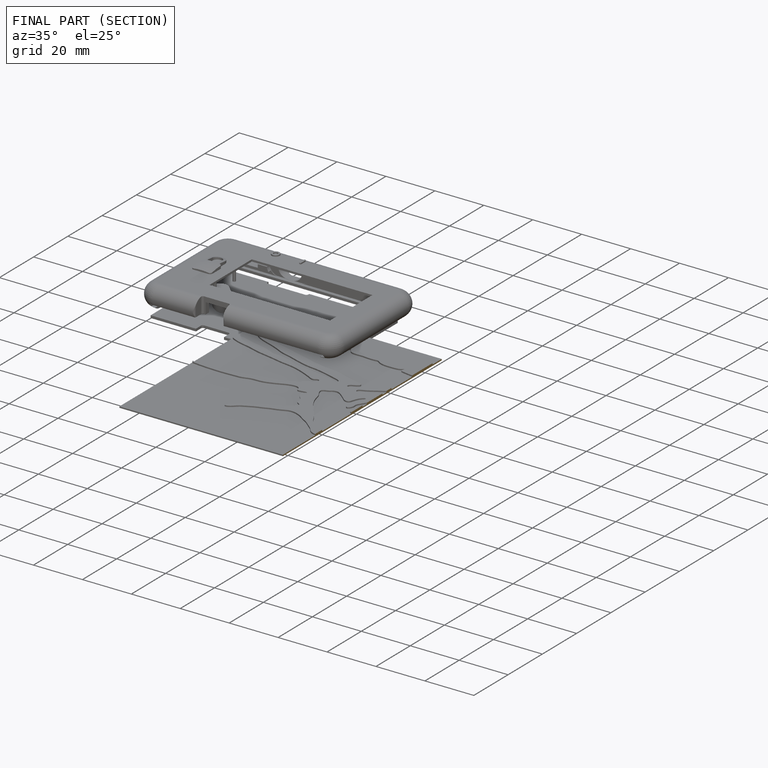
[diagram: finished part — half-section view (interior)]
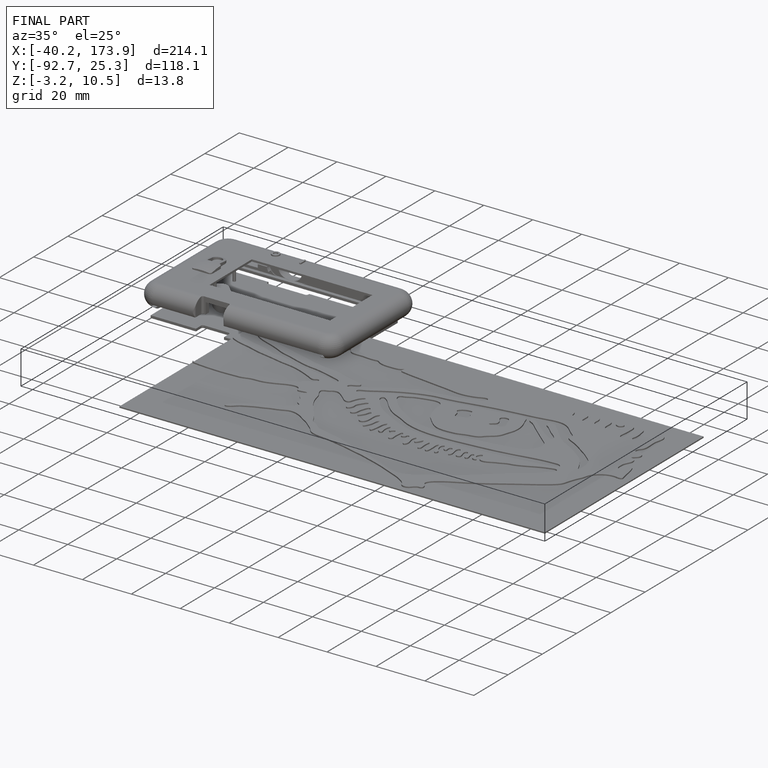
[diagram: finished part — iso view with bounding-box wireframe]
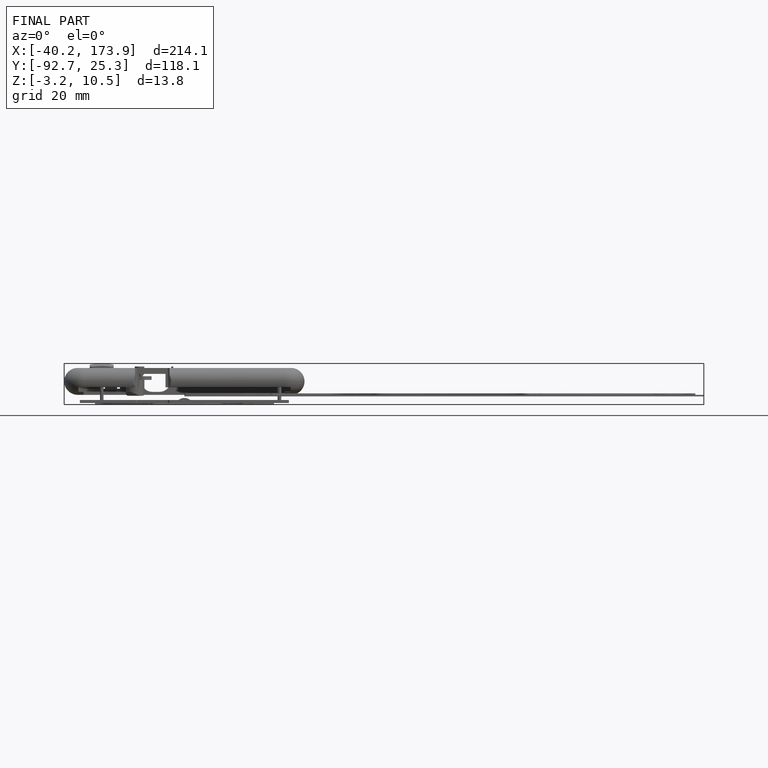
[diagram: finished part — front view with bounding-box wireframe]
